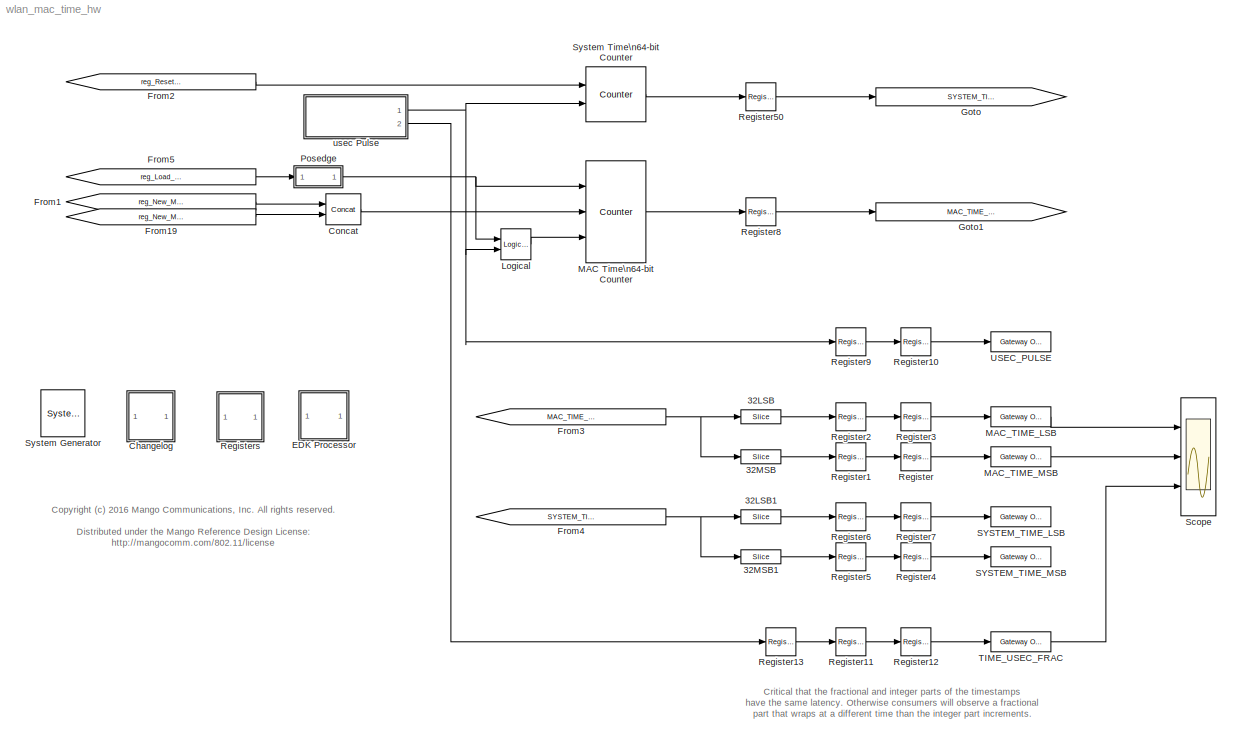
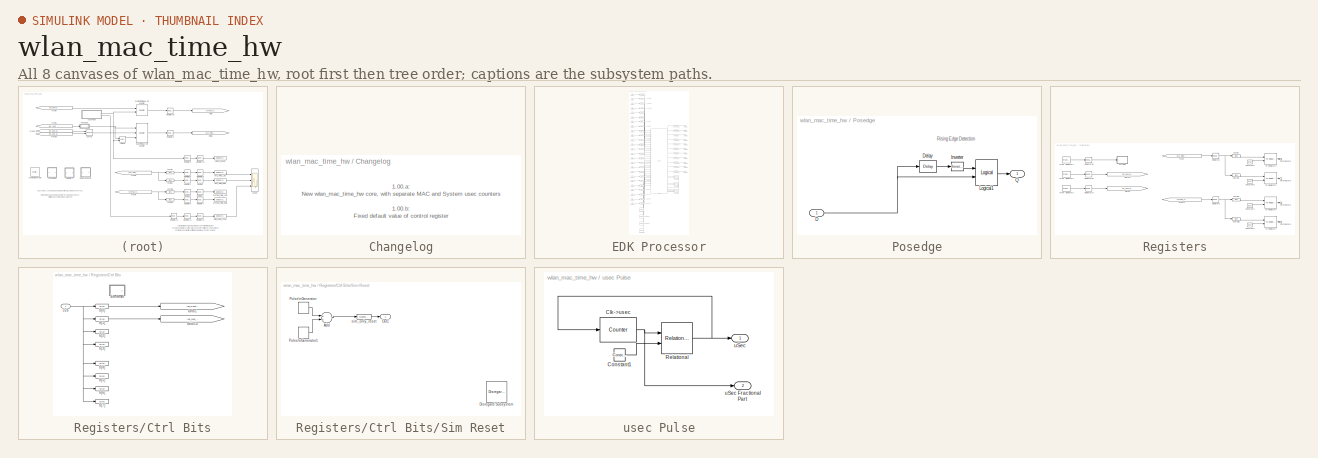
[diagram: thumbnail index - all 8 canvases of the model, root first then tree order]
MODEL wlan_mac_time_hw
KIND model
BLOCK [Reference]  System Generator  REF=xbsIndex_r4/ System Generator
  AttributesFormatString = System\\nGenerator
  Impl_file = ISE Defaults
  Ports = []
  SID = 1
  SourceBlock = xbsIndex_r4/ System Generator
  SourceType = Xilinx System Generator Block
  Synth_file = XST Defaults
  Tag = genX
  UserData = DataTag0
  UserDataPersistent = on
  block_type = sysgen
  clock_wrapper = Clock Enables
  core_generation = According to Block Masks
  dbl_ovrd = According to Block Masks
  dcm_input_clock_period = 10
  deprecated_control = off
  directory = ./wlan_mac_time_v1
  eval_field = 0
  has_advanced_control = 0
  incr_netlist = off
  infoedit = System Generator
  package = ff1156
  part = xc6vlx240t
  proj_type = Project Navigator
  run_coregen = off
  sg_icon_stat = 44,47,0,0,token,white,0,58c5b5770fe5f7c311f53dbc6e73f0f6,right,,[ ],[ ]
  sg_mask_display = fprintf('','COMMENT: begin icon graphics');\npatch([0 44 44 0 0 ],[0 0 47 47 0 ],[1 1 1 ]);\npatch([1.975 14.98 23.98 32.98 41.98 23.98 10.975 1.975 ],[32.99 32.99 41.99 32.99 41.99 41.99 41.99 32.99 ],[0.933333 0.203922 0.141176 ]);\npatch([10.975 23.98 14.98 1.975 10.975 ],[23.99 23.99 32.99 32.99 23.99 ],[0.698039 0.0313725 0.219608 ]);\npatch([1.975 14.98 23.98 10.975 1.975 ],[14.99 14.99 23.9...<+298ch>
  sggui_pos = 326,241,464,470
  simulink_period = 1
  speed = -2
  synthesis_tool = XST
  sysclk_period = 10
  testbench = off
  trim_vbits = Everywhere in SubSystem
  xilinxfamily = virtex6
BLOCK [Reference] 32LSB  REF=xbsIndex_r4/Slice
  Ports = [1, 1]
  SID = 3
  SourceBlock = xbsIndex_r4/Slice
  SourceType = Xilinx Bit Slice Extractor Block
  base0 = LSB of Input
  base1 = MSB of Input
  bit0 = 0
  bit1 = 0
  block_type = slice
  block_version = VER_STRING_GOES_HERE
  boolean_output = off
  dbl_ovrd = off
  has_advanced_control = 0
  infoedit = Extracts a given range of bits from each input sample and presents it at the output.  The output type is ordinarily unsigned with binary point at zero, but can be Boolean when the slice is one bit wide.<br><br>Hardware notes: In hardware this block costs nothing.  <repeated x16 — deduplicated; at blocks: 32LSB, 32LSB1, 32MSB, 32MSB1, b[0], b[1], b[2], b[3], b[4], b[5], b[6], b[7]>
  mode = Lower Bit Location + Width
  nbits = 32
  sg_icon_stat = 40,14,1,1,white,blue,0,1fd851a7,right,,[ ],[ ]
  sg_mask_display = fprintf('','COMMENT: begin icon graphics');\npatch([0 40 40 0 0 ],[0 0 14 14 0 ],[0.77 0.82 0.91 ]);\nplot([0 40 40 0 0 ],[0 0 14 14 0 ]);\npatch([15.55 18.44 20.44 22.44 24.44 20.44 17.55 15.55 ],[9.22 9.22 11.22 9.22 11.22 11.22 11.22 9.22 ],[1 1 1 ]);\npatch([17.55 20.44 18.44 15.55 17.55 ],[7.22 7.22 9.22 9.22 7.22 ],[0.931 0.946 0.973 ]);\npatch([15.55 18.44 20.44 17.55 15.55 ],[5.22 5.22 7.2...<+310ch>  <repeated x16 — deduplicated; at blocks: 32LSB, 32LSB1, 32MSB, 32MSB1, b[0], b[1], b[2], b[3], b[4], b[5], b[6], b[7]>
  sggui_pos = 20,20,449,398
BLOCK [Reference] 32LSB1  REF=xbsIndex_r4/Slice
  Ports = [1, 1]
  SID = 131
  SourceBlock = xbsIndex_r4/Slice
  SourceType = Xilinx Bit Slice Extractor Block
  base0 = LSB of Input
  base1 = MSB of Input
  bit0 = 0
  bit1 = 0
  block_type = slice
  block_version = VER_STRING_GOES_HERE
  boolean_output = off
  dbl_ovrd = off
  has_advanced_control = 0
  mode = Lower Bit Location + Width
  nbits = 32
  sg_icon_stat = 40,14,1,1,white,blue,0,1fd851a7,right,,[ ],[ ]
  sggui_pos = 20,20,449,398
BLOCK [Reference] 32MSB  REF=xbsIndex_r4/Slice
  Ports = [1, 1]
  SID = 4
  SourceBlock = xbsIndex_r4/Slice
  SourceType = Xilinx Bit Slice Extractor Block
  base0 = LSB of Input
  base1 = MSB of Input
  bit0 = 0
  bit1 = 0
  block_type = slice
  block_version = VER_STRING_GOES_HERE
  boolean_output = off
  dbl_ovrd = off
  has_advanced_control = 0
  mode = Upper Bit Location + Width
  nbits = 32
  sg_icon_stat = 40,14,1,1,white,blue,0,1fd851a7,right,,[ ],[ ]
  sggui_pos = 20,20,449,398
BLOCK [Reference] 32MSB1  REF=xbsIndex_r4/Slice
  Ports = [1, 1]
  SID = 132
  SourceBlock = xbsIndex_r4/Slice
  SourceType = Xilinx Bit Slice Extractor Block
  base0 = LSB of Input
  base1 = MSB of Input
  bit0 = 0
  bit1 = 0
  block_type = slice
  block_version = VER_STRING_GOES_HERE
  boolean_output = off
  dbl_ovrd = off
  has_advanced_control = 0
  mode = Upper Bit Location + Width
  nbits = 32
  sg_icon_stat = 40,14,1,1,white,blue,0,1fd851a7,right,,[ ],[ ]
  sggui_pos = 20,20,449,398
BLOCK [SubSystem] Changelog
  FunctionWithSeparateData = off
  MaskHideContents = off
  MinAlgLoopOccurrences = off
  Opaque = off
  Ports = []
  PropExecContextOutsideSubsystem = off
  RTWSystemCode = Auto
  RequestExecContextInheritance = off
  SID = 31
BLOCK [Reference] Concat  REF=xbsIndex_r4/Concat
  Ports = [2, 1]
  SID = 104
  SourceBlock = xbsIndex_r4/Concat
  SourceType = Xilinx Bus Concatenator Block
  block_type = concat
  dbl_ovrd = off
  has_advanced_control = 0
  infoedit = Concatenates two or more inputs.  Output will be cast to an unsigned value with the binary point at zero.
  num_inputs = 2
  sg_icon_stat = 35,31,2,1,white,blue,0,16398980,right,,[ ],[ ]
  sg_mask_display = fprintf('','COMMENT: begin icon graphics');\npatch([0 35 35 0 0 ],[0 0 31 31 0 ],[0.77 0.82 0.91 ]);\nplot([0 35 35 0 0 ],[0 0 31 31 0 ]);\npatch([8.1 13.88 17.88 21.88 25.88 17.88 12.1 8.1 ],[19.44 19.44 23.44 19.44 23.44 23.44 23.44 19.44 ],[1 1 1 ]);\npatch([12.1 17.88 13.88 8.1 12.1 ],[15.44 15.44 19.44 19.44 15.44 ],[0.931 0.946 0.973 ]);\npatch([8.1 13.88 17.88 12.1 8.1 ],[11.44 11.44 15.44 ...<+407ch>
  sggui_pos = -1,-1,-1,-1
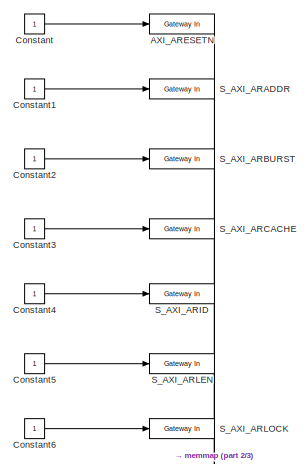
[diagram: EDK Processor - part 1/3, top left region]
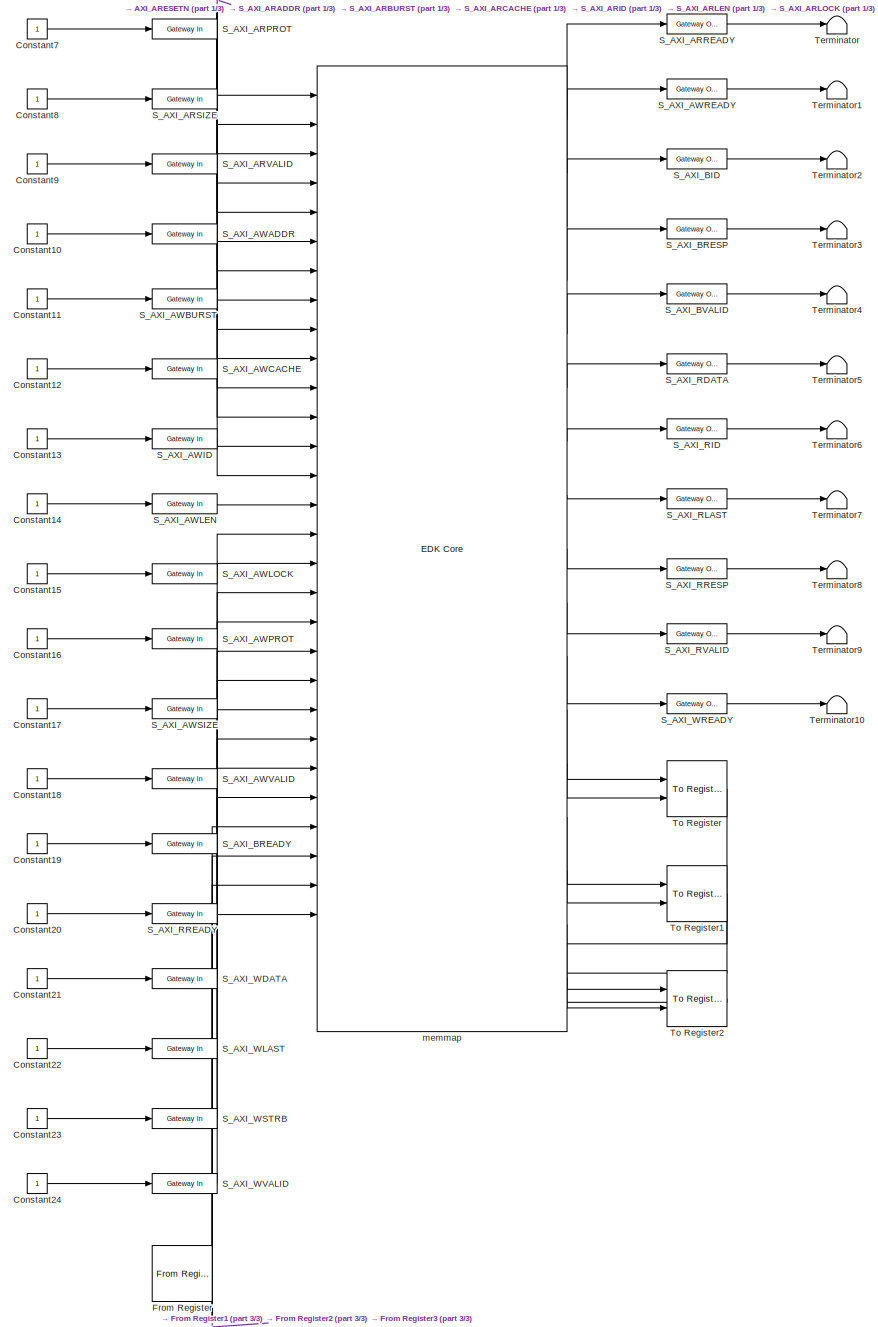
[diagram: EDK Processor - part 2/3, full width, middle band]
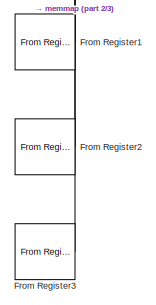
[diagram: EDK Processor - part 3/3, bottom left region]
BLOCK [SubSystem] EDK Processor
  CloseFcn = xlDestroyGui(gcbh);
  CopyFcn = xlProcBlockCopyCallback(gcbh);xlBlockMoveCallback(gcbh);
  DeleteFcn = xlDestroyGui(gcbh);
  DestroyFcn = xlDestroyGui(gcbh);
  FunctionWithSeparateData = off
  LoadFcn = xlBlockLoadCallback(gcbh);
  MaskCallbackString = |||||||||||||||||||||||||||||||||||
  MaskDescription = Xilinx EDK Processor
  MaskDisplay = fprintf('','COMMENT: begin icon graphics');\npatch([0 46 46 0 0 ],[0 0 46 46 0 ],[0.77 0.82 0.91 ]);\nplot([0 46 46 0 0 ],[0 0 46 46 0 ]);\npatch([9.65 18.32 24.32 30.32 36.32 24.32 15.65 9.65 ],[29.66 29.66 35.66 29.66 35.66 35.66 35.66 29.66 ],[1 1 1 ]);\npatch([15.65 24.32 18.32 9.65 15.65 ],[23.66 23.66 29.66 29.66 23.66 ],[0.931 0.946 0.973 ]);\npatch([9.65 18.32 24.32 15.65 9.65 ],[17.66 17....<+288ch>
  MaskEnableString = on,on,on,on,on,on,on,on,on,on,on,on,on,on,on,on,on,on,on,on,on,on,on,on,on,on,on,on,on,on,on,on,on,on,on,on
  MaskHelp = eval('');xlDoc('-book','sysgen','-topic','EDK_Processor');
  MaskHideContents = off
  MaskIconFrame = off
  MaskIconOpaque = on
  MaskIconRotate = none
  MaskIconUnits = autoscale
  MaskInitialization = try\n  tmp_gcb = gcb;\n  tmp_gcbh = gcbh;\n  if (strcmp('SysGenIndex',get_param(bdroot(tmp_gcbh),'tag')) && ~isempty(regexp(bdroot(tmp_gcb), '^xbs', 'once')))\n    return;\n  end;\n  xlMungeMaskParams;\n\n  block_type='edkprocessor';\n\n  serialized_declarations = '{''block_type''=>''String''}';\n  xledkprocessor_init();\n  ptable_ = xlblockprep(get_param(tmp_gcb, 'MaskWSVariables'));\n  try\n    ...<+321ch>
  MaskPortRotate = default
  MaskPromptString = Configure Processor for|XPS Project| |Available Memories| | |Bus Type|Base Address| |Lock| |Dual Clocks| |Register Read-Back|Constraint File| |Inherit Device Type|Initial Program| |Enable Co-Debug with Xilinx SDK (Beta)| | | | | | | | | | | | | | | |
  MaskSelfModifiable = on
  MaskStyleString = popup(EDK pcore generation|HDL netlisting),edit,edit,edit,edit,edit,popup(AXI|PLB),edit,edit,checkbox,edit,checkbox,edit,checkbox,edit,edit,checkbox,edit,edit,checkbox,edit,edit,edit,edit,edit,edit,edit,edit,edit,edit,edit,edit,edit,edit,edit,edit
  MaskToolTipString = on,on,on,on,on,on,on,on,on,on,on,on,on,on,on,on,on,on,on,on,on,on,on,on,on,on,on,on,on,on,on,on,on,on,on,on
  MaskTunableValueString = on,on,on,on,on,on,on,on,on,on,on,on,on,on,on,on,on,on,on,on,on,on,on,on,on,on,on,on,on,on,on,on,on,on,on,on
  MaskType = Xilinx EDK Processor Block
  MaskValueString = EDK pcore generation||<qt bgcolor=\"#FFFFFF\"><div><img src=\"<path>"> &lt;&lt;NEW_MAC_TIME_MSB&gt;&gt;<br></div><div><img src=\"<path>"> &lt;&lt;NEW_MAC_TIME_LSB&gt;&gt;<br></div><div><img src=\"<path>"> &lt;&lt;Control&gt;&gt;<br>...<+2286ch>
  MaskVariables = mode=&1;xmp=&2;MemVisToProc=&3;AvailableMemories=&4;portInterfaceTable=&5;bus_type_sgadvanced=&6;bus_type=&7;baseaddr=&8;baseaddr_lock_sgadvanced=&9;baseaddr_lock=@10;dual_clock_sgadvanced=&11;dual_clock=@12;reg_readback_sgadvanced=&13;reg_readback=@14;ucf_file=&15;inheritDeviceType_sgadvanced=&16;inheritDeviceType=@17;elf_file=&18;codebug_sgadvanced=&19;codebug=@20;clock_name=&21;internalPortList...<+246ch>
  MaskVisibilityString = on,on,off,on,on,off,on,on,off,on,off,on,off,on,on,off,on,on,off,on,off,off,off,off,off,off,off,off,off,off,off,off,off,off,off,off
  MinAlgLoopOccurrences = off
  ModelCloseFcn = xlDestroyGui(gcbh);
  MoveFcn = xlBlockMoveCallback(gcbh);
  Opaque = off
  OpenFcn = bh=gcbh;xlProcBlockCallbacks('populatesharedmemorylistbox',bh);xlOpenGui(bh, 'edkprocessor_gui.xml', @xlProcBlockEnablement, @xlProcBlockAction);
  Ports = []
  PostSaveFcn = xlBlockPostSaveCallback(gcbh);
  PreSaveFcn = xlBlockPreSaveCallback(gcbh);
  PropExecContextOutsideSubsystem = off
  RTWSystemCode = Auto
  RequestExecContextInheritance = off
  SID = 215
BLOCK [Reference] EDK Processor/AXI_ARESETN  REF=xbsIndex_r4/Gateway In
  ADCChannel = '1'
  LOCs = {}
  Ports = [1, 1]
  SID = 215:211
  SourceBlock = xbsIndex_r4/Gateway In
  SourceType = Xilinx Gateway In Block
  UseAsADC = off
  arith_type = Boolean
  bin_pt = 14
  block_type = gatewayin
  dbl_ovrd = off
  exp_width = 8
  frac_width = 24
  gui_display_data_type = Fixed-point
  has_advanced_control = 0
  hdl_port = on
  infoedit = Gateway in block.  Converts inputs of type Simulink integer, single, double and fixed-point to  Xilinx fixed-point or floating-point data type.<br><br>Hardware notes:  In hardware these blocks become top level input ports.  <repeated x26 — deduplicated; at blocks: AXI_ARESETN, S_AXI_ARADDR, S_AXI_ARBURST, S_AXI_ARCACHE, S_AXI_ARID, S_AXI_ARLEN, S_AXI_ARLOCK, S_AXI_ARPROT, S_AXI_ARSIZE, S_AXI_ARVALID, S_AXI_AWADDR, S_AXI_AWBURST, S_AXI_AWCACHE, S_AXI_AWID, S_AXI_AWLEN, S_AXI_AWLOCK, +10 more>
  inherit_from_input = off
  locs_specified = off
  n_bits = 16
  overflow = Saturate
  period = xlGetNormalizedPeriod()
  preci_type = Single
  quantization = Round  (unbiased: +/- Inf)
  sg_icon_stat = 65,20,1,1,white,yellow,1,00d3666e,right,,[ ],[ ]
  sg_mask_display = fprintf('','COMMENT: begin icon graphics');\npatch([0 65 65 0 0 ],[0 0 20 20 0 ],[0.95 0.93 0.65 ]);\nplot([0 65 65 0 0 ],[0 0 20 20 0 ]);\npatch([27.55 30.44 32.44 34.44 36.44 32.44 29.55 27.55 ],[12.22 12.22 14.22 12.22 14.22 14.22 14.22 12.22 ],[1 1 1 ]);\npatch([29.55 32.44 30.44 27.55 29.55 ],[10.22 10.22 12.22 12.22 10.22 ],[0.985 0.979 0.895 ]);\npatch([27.55 30.44 32.44 29.55 27.55 ],[8.22...<+396ch>  <repeated x25 — deduplicated; at blocks: AXI_ARESETN, S_AXI_ARADDR, S_AXI_ARBURST, S_AXI_ARCACHE, S_AXI_ARID, S_AXI_ARLEN, S_AXI_ARLOCK, S_AXI_ARPROT, S_AXI_ARSIZE, S_AXI_ARVALID, S_AXI_AWADDR, S_AXI_AWBURST, S_AXI_AWCACHE, S_AXI_AWID, S_AXI_AWLEN, S_AXI_AWLOCK, +9 more>
  sggui_pos = -1,-1,-1,-1
  timing_constraint = None
  xl_area = [0,0,0,0,0,0,0]
  xl_use_area = off
BLOCK [Constant] EDK Processor/Constant
  MaskIconFrame = on
  MaskIconOpaque = on
  MaskIconRotate = none
  MaskIconUnits = autoscale
  MaskPortRotate = default
  SID = 215:210
BLOCK [Constant] EDK Processor/Constant1
  MaskIconFrame = on
  MaskIconOpaque = on
  MaskIconRotate = none
  MaskIconUnits = autoscale
  MaskPortRotate = default
  SID = 215:212
BLOCK [Constant] EDK Processor/Constant10
  MaskIconFrame = on
  MaskIconOpaque = on
  MaskIconRotate = none
  MaskIconUnits = autoscale
  MaskPortRotate = default
  SID = 215:230
BLOCK [Constant] EDK Processor/Constant11
  MaskIconFrame = on
  MaskIconOpaque = on
  MaskIconRotate = none
  MaskIconUnits = autoscale
  MaskPortRotate = default
  SID = 215:232
BLOCK [Constant] EDK Processor/Constant12
  MaskIconFrame = on
  MaskIconOpaque = on
  MaskIconRotate = none
  MaskIconUnits = autoscale
  MaskPortRotate = default
  SID = 215:234
BLOCK [Constant] EDK Processor/Constant13
  MaskIconFrame = on
  MaskIconOpaque = on
  MaskIconRotate = none
  MaskIconUnits = autoscale
  MaskPortRotate = default
  SID = 215:236
BLOCK [Constant] EDK Processor/Constant14
  MaskIconFrame = on
  MaskIconOpaque = on
  MaskIconRotate = none
  MaskIconUnits = autoscale
  MaskPortRotate = default
  SID = 215:238
BLOCK [Constant] EDK Processor/Constant15
  MaskIconFrame = on
  MaskIconOpaque = on
  MaskIconRotate = none
  MaskIconUnits = autoscale
  MaskPortRotate = default
  SID = 215:240
BLOCK [Constant] EDK Processor/Constant16
  MaskIconFrame = on
  MaskIconOpaque = on
  MaskIconRotate = none
  MaskIconUnits = autoscale
  MaskPortRotate = default
  SID = 215:242
BLOCK [Constant] EDK Processor/Constant17
  MaskIconFrame = on
  MaskIconOpaque = on
  MaskIconRotate = none
  MaskIconUnits = autoscale
  MaskPortRotate = default
  SID = 215:244
BLOCK [Constant] EDK Processor/Constant18
  MaskIconFrame = on
  MaskIconOpaque = on
  MaskIconRotate = none
  MaskIconUnits = autoscale
  MaskPortRotate = default
  SID = 215:246
BLOCK [Constant] EDK Processor/Constant19
  MaskIconFrame = on
  MaskIconOpaque = on
  MaskIconRotate = none
  MaskIconUnits = autoscale
  MaskPortRotate = default
  SID = 215:248
BLOCK [Constant] EDK Processor/Constant2
  MaskIconFrame = on
  MaskIconOpaque = on
  MaskIconRotate = none
  MaskIconUnits = autoscale
  MaskPortRotate = default
  SID = 215:214
BLOCK [Constant] EDK Processor/Constant20
  MaskIconFrame = on
  MaskIconOpaque = on
  MaskIconRotate = none
  MaskIconUnits = autoscale
  MaskPortRotate = default
  SID = 215:250
BLOCK [Constant] EDK Processor/Constant21
  MaskIconFrame = on
  MaskIconOpaque = on
  MaskIconRotate = none
  MaskIconUnits = autoscale
  MaskPortRotate = default
  SID = 215:252
BLOCK [Constant] EDK Processor/Constant22
  MaskIconFrame = on
  MaskIconOpaque = on
  MaskIconRotate = none
  MaskIconUnits = autoscale
  MaskPortRotate = default
  SID = 215:254
BLOCK [Constant] EDK Processor/Constant23
  MaskIconFrame = on
  MaskIconOpaque = on
  MaskIconRotate = none
  MaskIconUnits = autoscale
  MaskPortRotate = default
  SID = 215:256
BLOCK [Constant] EDK Processor/Constant24
  MaskIconFrame = on
  MaskIconOpaque = on
  MaskIconRotate = none
  MaskIconUnits = autoscale
  MaskPortRotate = default
  SID = 215:258
BLOCK [Constant] EDK Processor/Constant3
  MaskIconFrame = on
  MaskIconOpaque = on
  MaskIconRotate = none
  MaskIconUnits = autoscale
  MaskPortRotate = default
  SID = 215:216
BLOCK [Constant] EDK Processor/Constant4
  MaskIconFrame = on
  MaskIconOpaque = on
  MaskIconRotate = none
  MaskIconUnits = autoscale
  MaskPortRotate = default
  SID = 215:218
BLOCK [Constant] EDK Processor/Constant5
  MaskIconFrame = on
  MaskIconOpaque = on
  MaskIconRotate = none
  MaskIconUnits = autoscale
  MaskPortRotate = default
  SID = 215:220
BLOCK [Constant] EDK Processor/Constant6
  MaskIconFrame = on
  MaskIconOpaque = on
  MaskIconRotate = none
  MaskIconUnits = autoscale
  MaskPortRotate = default
  SID = 215:222
BLOCK [Constant] EDK Processor/Constant7
  MaskIconFrame = on
  MaskIconOpaque = on
  MaskIconRotate = none
  MaskIconUnits = autoscale
  MaskPortRotate = default
  SID = 215:224
BLOCK [Constant] EDK Processor/Constant8
  MaskIconFrame = on
  MaskIconOpaque = on
  MaskIconRotate = none
  MaskIconUnits = autoscale
  MaskPortRotate = default
  SID = 215:226
BLOCK [Constant] EDK Processor/Constant9
  MaskIconFrame = on
  MaskIconOpaque = on
  MaskIconRotate = none
  MaskIconUnits = autoscale
  MaskPortRotate = default
  SID = 215:228
BLOCK [Reference] EDK Processor/From Register  REF=xbsIndex_r4/From Register
  AttributesFormatString = << %<shared_memory_name> >>
  Ports = [0, 1]
  SID = 215:203
  SourceBlock = xbsIndex_r4/From Register
  SourceType = Xilinx Shared Memory Based From Register Block
  arith_type = Unsigned
  bin_pt = 0
  block_type = fromreg
  dbl_ovrd = off
  gui_display_data_type = Fixed-point
  has_advanced_control = 0
  infoedit = Register block that reads data to a shared memory register.  Delay of one sample period.
  init = 0
  n_bits = 32
  ownership = Owned and initialized elsewhere
  period = xlGetNormalizedPeriod()
  preci_type = Single
  sg_icon_stat = 60,56,0,1,white,blue,0,b27a07ff,right,,[ ],[ ]
  sg_mask_display = fprintf('','COMMENT: begin icon graphics');\npatch([0 60 60 0 0 ],[0 0 56 56 0 ],[0.77 0.82 0.91 ]);\nplot([0 60 60 0 0 ],[0 0 56 56 0 ]);\npatch([12.2 23.76 31.76 39.76 47.76 31.76 20.2 12.2 ],[36.88 36.88 44.88 36.88 44.88 44.88 44.88 36.88 ],[1 1 1 ]);\npatch([20.2 31.76 23.76 12.2 20.2 ],[28.88 28.88 36.88 36.88 28.88 ],[0.931 0.946 0.973 ]);\npatch([12.2 23.76 31.76 20.2 12.2 ],[20.88 20.88 2...<+316ch>  <repeated x4 — deduplicated; at blocks: From Register, From Register1, From Register2, From Register3>
  sggui_pos = -1,-1,-1,-1
  shared_memory_name = 'SYSTEM_TIME_USEC_MSB'
  xl_area = [0,0,0,0,0,0,0]
  xl_use_area = off
BLOCK [Reference] EDK Processor/From Register1  REF=xbsIndex_r4/From Register
  AttributesFormatString = << %<shared_memory_name> >>
  Ports = [0, 1]
  SID = 215:204
  SourceBlock = xbsIndex_r4/From Register
  SourceType = Xilinx Shared Memory Based From Register Block
  arith_type = Unsigned
  bin_pt = 0
  block_type = fromreg
  dbl_ovrd = off
  gui_display_data_type = Fixed-point
  has_advanced_control = 0
  infoedit = Register block that reads data to a shared memory register.  Delay of one sample period.
  init = 0
  n_bits = 32
  ownership = Owned and initialized elsewhere
  period = xlGetNormalizedPeriod()
  preci_type = Single
  sg_icon_stat = 60,56,0,1,white,blue,0,b27a07ff,right,,[ ],[ ]
  sggui_pos = -1,-1,-1,-1
  shared_memory_name = 'SYSTEM_TIME_USEC_LSB'
  xl_area = [0,0,0,0,0,0,0]
  xl_use_area = off
BLOCK [Reference] EDK Processor/From Register2  REF=xbsIndex_r4/From Register
  AttributesFormatString = << %<shared_memory_name> >>
  Ports = [0, 1]
  SID = 215:205
  SourceBlock = xbsIndex_r4/From Register
  SourceType = Xilinx Shared Memory Based From Register Block
  arith_type = Unsigned
  bin_pt = 0
  block_type = fromreg
  dbl_ovrd = off
  gui_display_data_type = Fixed-point
  has_advanced_control = 0
  infoedit = Register block that reads data to a shared memory register.  Delay of one sample period.
  init = 0
  n_bits = 32
  ownership = Owned and initialized elsewhere
  period = xlGetNormalizedPeriod()
  preci_type = Single
  sg_icon_stat = 60,56,0,1,white,blue,0,b27a07ff,right,,[ ],[ ]
  sggui_pos = -1,-1,-1,-1
  shared_memory_name = 'MAC_TIME_USEC_MSB'
  xl_area = [0,0,0,0,0,0,0]
  xl_use_area = off
BLOCK [Reference] EDK Processor/From Register3  REF=xbsIndex_r4/From Register
  AttributesFormatString = << %<shared_memory_name> >>
  Ports = [0, 1]
  SID = 215:206
  SourceBlock = xbsIndex_r4/From Register
  SourceType = Xilinx Shared Memory Based From Register Block
  arith_type = Unsigned
  bin_pt = 0
  block_type = fromreg
  dbl_ovrd = off
  gui_display_data_type = Fixed-point
  has_advanced_control = 0
  infoedit = Register block that reads data to a shared memory register.  Delay of one sample period.
  init = 0
  n_bits = 32
  ownership = Owned and initialized elsewhere
  period = xlGetNormalizedPeriod()
  preci_type = Single
  sg_icon_stat = 60,56,0,1,white,blue,0,b27a07ff,right,,[ ],[ ]
  sggui_pos = -1,-1,-1,-1
  shared_memory_name = 'MAC_TIME_USEC_LSB'
  xl_area = [0,0,0,0,0,0,0]
  xl_use_area = off
BLOCK [Reference] EDK Processor/S_AXI_ARADDR  REF=xbsIndex_r4/Gateway In
  ADCChannel = '1'
  LOCs = {}
  Ports = [1, 1]
  SID = 215:213
  SourceBlock = xbsIndex_r4/Gateway In
  SourceType = Xilinx Gateway In Block
  UseAsADC = off
  arith_type = Unsigned
  bin_pt = 0
  block_type = gatewayin
  dbl_ovrd = off
  exp_width = 8
  frac_width = 24
  gui_display_data_type = Fixed-point
  has_advanced_control = 0
  hdl_port = on
  inherit_from_input = off
  locs_specified = off
  n_bits = 32
  overflow = Saturate
  period = xlGetNormalizedPeriod()
  preci_type = Single
  quantization = Round  (unbiased: +/- Inf)
  sg_icon_stat = 65,20,1,1,white,yellow,1,00d3666e,right,,[ ],[ ]
  sggui_pos = -1,-1,-1,-1
  timing_constraint = None
  xl_area = [0,0,0,0,0,0,0]
  xl_use_area = off
BLOCK [Reference] EDK Processor/S_AXI_ARBURST  REF=xbsIndex_r4/Gateway In
  ADCChannel = '1'
  LOCs = {}
  Ports = [1, 1]
  SID = 215:215
  SourceBlock = xbsIndex_r4/Gateway In
  SourceType = Xilinx Gateway In Block
  UseAsADC = off
  arith_type = Unsigned
  bin_pt = 0
  block_type = gatewayin
  dbl_ovrd = off
  exp_width = 8
  frac_width = 24
  gui_display_data_type = Fixed-point
  has_advanced_control = 0
  hdl_port = on
  inherit_from_input = off
  locs_specified = off
  n_bits = 2
  overflow = Saturate
  period = xlGetNormalizedPeriod()
  preci_type = Single
  quantization = Round  (unbiased: +/- Inf)
  sg_icon_stat = 65,20,1,1,white,yellow,1,00d3666e,right,,[ ],[ ]
  sggui_pos = -1,-1,-1,-1
  timing_constraint = None
  xl_area = [0,0,0,0,0,0,0]
  xl_use_area = off
BLOCK [Reference] EDK Processor/S_AXI_ARCACHE  REF=xbsIndex_r4/Gateway In
  ADCChannel = '1'
  LOCs = {}
  Ports = [1, 1]
  SID = 215:217
  SourceBlock = xbsIndex_r4/Gateway In
  SourceType = Xilinx Gateway In Block
  UseAsADC = off
  arith_type = Unsigned
  bin_pt = 0
  block_type = gatewayin
  dbl_ovrd = off
  exp_width = 8
  frac_width = 24
  gui_display_data_type = Fixed-point
  has_advanced_control = 0
  hdl_port = on
  inherit_from_input = off
  locs_specified = off
  n_bits = 4
  overflow = Saturate
  period = xlGetNormalizedPeriod()
  preci_type = Single
  quantization = Round  (unbiased: +/- Inf)
  sg_icon_stat = 65,20,1,1,white,yellow,1,00d3666e,right,,[ ],[ ]
  sggui_pos = -1,-1,-1,-1
  timing_constraint = None
  xl_area = [0,0,0,0,0,0,0]
  xl_use_area = off
BLOCK [Reference] EDK Processor/S_AXI_ARID  REF=xbsIndex_r4/Gateway In
  ADCChannel = '1'
  LOCs = {}
  Ports = [1, 1]
  SID = 215:219
  SourceBlock = xbsIndex_r4/Gateway In
  SourceType = Xilinx Gateway In Block
  UseAsADC = off
  arith_type = Unsigned
  bin_pt = 0
  block_type = gatewayin
  dbl_ovrd = off
  exp_width = 8
  frac_width = 24
  gui_display_data_type = Fixed-point
  has_advanced_control = 0
  hdl_port = on
  inherit_from_input = off
  locs_specified = off
  n_bits = 8
  overflow = Saturate
  period = xlGetNormalizedPeriod()
  preci_type = Single
  quantization = Round  (unbiased: +/- Inf)
  sg_icon_stat = 65,20,1,1,white,yellow,1,00d3666e,right,,[ ],[ ]
  sggui_pos = -1,-1,-1,-1
  timing_constraint = None
  xl_area = [0,0,0,0,0,0,0]
  xl_use_area = off
BLOCK [Reference] EDK Processor/S_AXI_ARLEN  REF=xbsIndex_r4/Gateway In
  ADCChannel = '1'
  LOCs = {}
  Ports = [1, 1]
  SID = 215:221
  SourceBlock = xbsIndex_r4/Gateway In
  SourceType = Xilinx Gateway In Block
  UseAsADC = off
  arith_type = Unsigned
  bin_pt = 0
  block_type = gatewayin
  dbl_ovrd = off
  exp_width = 8
  frac_width = 24
  gui_display_data_type = Fixed-point
  has_advanced_control = 0
  hdl_port = on
  inherit_from_input = off
  locs_specified = off
  n_bits = 8
  overflow = Saturate
  period = xlGetNormalizedPeriod()
  preci_type = Single
  quantization = Round  (unbiased: +/- Inf)
  sg_icon_stat = 65,20,1,1,white,yellow,1,00d3666e,right,,[ ],[ ]
  sggui_pos = -1,-1,-1,-1
  timing_constraint = None
  xl_area = [0,0,0,0,0,0,0]
  xl_use_area = off
BLOCK [Reference] EDK Processor/S_AXI_ARLOCK  REF=xbsIndex_r4/Gateway In
  ADCChannel = '1'
  LOCs = {}
  Ports = [1, 1]
  SID = 215:223
  SourceBlock = xbsIndex_r4/Gateway In
  SourceType = Xilinx Gateway In Block
  UseAsADC = off
  arith_type = Unsigned
  bin_pt = 0
  block_type = gatewayin
  dbl_ovrd = off
  exp_width = 8
  frac_width = 24
  gui_display_data_type = Fixed-point
  has_advanced_control = 0
  hdl_port = on
  inherit_from_input = off
  locs_specified = off
  n_bits = 2
  overflow = Saturate
  period = xlGetNormalizedPeriod()
  preci_type = Single
  quantization = Round  (unbiased: +/- Inf)
  sg_icon_stat = 65,20,1,1,white,yellow,1,00d3666e,right,,[ ],[ ]
  sggui_pos = -1,-1,-1,-1
  timing_constraint = None
  xl_area = [0,0,0,0,0,0,0]
  xl_use_area = off
BLOCK [Reference] EDK Processor/S_AXI_ARPROT  REF=xbsIndex_r4/Gateway In
  ADCChannel = '1'
  LOCs = {}
  Ports = [1, 1]
  SID = 215:225
  SourceBlock = xbsIndex_r4/Gateway In
  SourceType = Xilinx Gateway In Block
  UseAsADC = off
  arith_type = Unsigned
  bin_pt = 0
  block_type = gatewayin
  dbl_ovrd = off
  exp_width = 8
  frac_width = 24
  gui_display_data_type = Fixed-point
  has_advanced_control = 0
  hdl_port = on
  inherit_from_input = off
  locs_specified = off
  n_bits = 3
  overflow = Saturate
  period = xlGetNormalizedPeriod()
  preci_type = Single
  quantization = Round  (unbiased: +/- Inf)
  sg_icon_stat = 65,20,1,1,white,yellow,1,00d3666e,right,,[ ],[ ]
  sggui_pos = -1,-1,-1,-1
  timing_constraint = None
  xl_area = [0,0,0,0,0,0,0]
  xl_use_area = off
BLOCK [Reference] EDK Processor/S_AXI_ARREADY  REF=xbsIndex_r4/Gateway Out
  DACChannel = '1'
  LOCs = {}
  Ports = [1, 1]
  SID = 215:261
  SourceBlock = xbsIndex_r4/Gateway Out
  SourceType = Xilinx Gateway Out Block
  UseAsDAC = off
  block_type = gatewayout
  has_advanced_control = 0
  hdl_port = on
  infoedit = Gateway out block.  Converts Xilinx fixed-point or floating-point type inputs into ouputs of type Simulink integer, single, double, or fixed-point.<br><br>Hardware notes:  In hardware these blocks become top level output ports or are discarded, depending on how they are configured.  <repeated x17 — deduplicated; at blocks: S_AXI_ARREADY, S_AXI_AWREADY, S_AXI_BID, S_AXI_BRESP, S_AXI_BVALID, S_AXI_RDATA, S_AXI_RID, S_AXI_RLAST, S_AXI_RRESP, S_AXI_RVALID, S_AXI_WREADY, MAC_TIME_LSB, MAC_TIME_MSB, SYSTEM_TIME_LSB, SYSTEM_TIME_MSB, TIME_USEC_FRAC, +1 more>
  inherit_from_input = off
  locs_specified = off
  sg_icon_stat = 60,20,1,1,white,yellow,1,cc31b7ac,right,,[ ],[ ]
  sg_mask_display = fprintf('','COMMENT: begin icon graphics');\npatch([0 60 60 0 0 ],[0 0 20 20 0 ],[0.95 0.93 0.65 ]);\nplot([0 60 60 0 0 ],[0 0 20 20 0 ]);\npatch([25.55 28.44 30.44 32.44 34.44 30.44 27.55 25.55 ],[12.22 12.22 14.22 12.22 14.22 14.22 14.22 12.22 ],[1 1 1 ]);\npatch([27.55 30.44 28.44 25.55 27.55 ],[10.22 10.22 12.22 12.22 10.22 ],[0.985 0.979 0.895 ]);\npatch([25.55 28.44 30.44 27.55 25.55 ],[8.22...<+397ch>  <repeated x17 — deduplicated; at blocks: S_AXI_ARREADY, S_AXI_AWREADY, S_AXI_BID, S_AXI_BRESP, S_AXI_BVALID, S_AXI_RDATA, S_AXI_RID, S_AXI_RLAST, S_AXI_RRESP, S_AXI_RVALID, S_AXI_WREADY, MAC_TIME_LSB, MAC_TIME_MSB, SYSTEM_TIME_LSB, SYSTEM_TIME_MSB, TIME_USEC_FRAC, +1 more>
  sggui_pos = -1,-1,-1,-1
  timing_constraint = None
  xl_area = [0,0,0,0,0,0,0]
  xl_use_area = off
BLOCK [Reference] EDK Processor/S_AXI_ARSIZE  REF=xbsIndex_r4/Gateway In
  ADCChannel = '1'
  LOCs = {}
  Ports = [1, 1]
  SID = 215:227
  SourceBlock = xbsIndex_r4/Gateway In
  SourceType = Xilinx Gateway In Block
  UseAsADC = off
  arith_type = Unsigned
  bin_pt = 0
  block_type = gatewayin
  dbl_ovrd = off
  exp_width = 8
  frac_width = 24
  gui_display_data_type = Fixed-point
  has_advanced_control = 0
  hdl_port = on
  inherit_from_input = off
  locs_specified = off
  n_bits = 3
  overflow = Saturate
  period = xlGetNormalizedPeriod()
  preci_type = Single
  quantization = Round  (unbiased: +/- Inf)
  sg_icon_stat = 65,20,1,1,white,yellow,1,00d3666e,right,,[ ],[ ]
  sggui_pos = -1,-1,-1,-1
  timing_constraint = None
  xl_area = [0,0,0,0,0,0,0]
  xl_use_area = off
BLOCK [Reference] EDK Processor/S_AXI_ARVALID  REF=xbsIndex_r4/Gateway In
  ADCChannel = '1'
  LOCs = {}
  Ports = [1, 1]
  SID = 215:229
  SourceBlock = xbsIndex_r4/Gateway In
  SourceType = Xilinx Gateway In Block
  UseAsADC = off
  arith_type = Boolean
  bin_pt = 14
  block_type = gatewayin
  dbl_ovrd = off
  exp_width = 8
  frac_width = 24
  gui_display_data_type = Fixed-point
  has_advanced_control = 0
  hdl_port = on
  inherit_from_input = off
  locs_specified = off
  n_bits = 16
  overflow = Saturate
  period = xlGetNormalizedPeriod()
  preci_type = Single
  quantization = Round  (unbiased: +/- Inf)
  sg_icon_stat = 65,20,1,1,white,yellow,1,00d3666e,right,,[ ],[ ]
  sggui_pos = -1,-1,-1,-1
  timing_constraint = None
  xl_area = [0,0,0,0,0,0,0]
  xl_use_area = off
BLOCK [Reference] EDK Processor/S_AXI_AWADDR  REF=xbsIndex_r4/Gateway In
  ADCChannel = '1'
  LOCs = {}
  Ports = [1, 1]
  SID = 215:231
  SourceBlock = xbsIndex_r4/Gateway In
  SourceType = Xilinx Gateway In Block
  UseAsADC = off
  arith_type = Unsigned
  bin_pt = 0
  block_type = gatewayin
  dbl_ovrd = off
  exp_width = 8
  frac_width = 24
  gui_display_data_type = Fixed-point
  has_advanced_control = 0
  hdl_port = on
  inherit_from_input = off
  locs_specified = off
  n_bits = 32
  overflow = Saturate
  period = xlGetNormalizedPeriod()
  preci_type = Single
  quantization = Round  (unbiased: +/- Inf)
  sg_icon_stat = 65,20,1,1,white,yellow,1,00d3666e,right,,[ ],[ ]
  sggui_pos = -1,-1,-1,-1
  timing_constraint = None
  xl_area = [0,0,0,0,0,0,0]
  xl_use_area = off
BLOCK [Reference] EDK Processor/S_AXI_AWBURST  REF=xbsIndex_r4/Gateway In
  ADCChannel = '1'
  LOCs = {}
  Ports = [1, 1]
  SID = 215:233
  SourceBlock = xbsIndex_r4/Gateway In
  SourceType = Xilinx Gateway In Block
  UseAsADC = off
  arith_type = Unsigned
  bin_pt = 0
  block_type = gatewayin
  dbl_ovrd = off
  exp_width = 8
  frac_width = 24
  gui_display_data_type = Fixed-point
  has_advanced_control = 0
  hdl_port = on
  inherit_from_input = off
  locs_specified = off
  n_bits = 2
  overflow = Saturate
  period = xlGetNormalizedPeriod()
  preci_type = Single
  quantization = Round  (unbiased: +/- Inf)
  sg_icon_stat = 65,20,1,1,white,yellow,1,00d3666e,right,,[ ],[ ]
  sggui_pos = -1,-1,-1,-1
  timing_constraint = None
  xl_area = [0,0,0,0,0,0,0]
  xl_use_area = off
BLOCK [Reference] EDK Processor/S_AXI_AWCACHE  REF=xbsIndex_r4/Gateway In
  ADCChannel = '1'
  LOCs = {}
  Ports = [1, 1]
  SID = 215:235
  SourceBlock = xbsIndex_r4/Gateway In
  SourceType = Xilinx Gateway In Block
  UseAsADC = off
  arith_type = Unsigned
  bin_pt = 0
  block_type = gatewayin
  dbl_ovrd = off
  exp_width = 8
  frac_width = 24
  gui_display_data_type = Fixed-point
  has_advanced_control = 0
  hdl_port = on
  inherit_from_input = off
  locs_specified = off
  n_bits = 4
  overflow = Saturate
  period = xlGetNormalizedPeriod()
  preci_type = Single
  quantization = Round  (unbiased: +/- Inf)
  sg_icon_stat = 65,20,1,1,white,yellow,1,00d3666e,right,,[ ],[ ]
  sggui_pos = -1,-1,-1,-1
  timing_constraint = None
  xl_area = [0,0,0,0,0,0,0]
  xl_use_area = off
BLOCK [Reference] EDK Processor/S_AXI_AWID  REF=xbsIndex_r4/Gateway In
  ADCChannel = '1'
  LOCs = {}
  Ports = [1, 1]
  SID = 215:237
  SourceBlock = xbsIndex_r4/Gateway In
  SourceType = Xilinx Gateway In Block
  UseAsADC = off
  arith_type = Unsigned
  bin_pt = 0
  block_type = gatewayin
  dbl_ovrd = off
  exp_width = 8
  frac_width = 24
  gui_display_data_type = Fixed-point
  has_advanced_control = 0
  hdl_port = on
  inherit_from_input = off
  locs_specified = off
  n_bits = 8
  overflow = Saturate
  period = xlGetNormalizedPeriod()
  preci_type = Single
  quantization = Round  (unbiased: +/- Inf)
  sg_icon_stat = 65,20,1,1,white,yellow,1,00d3666e,right,,[ ],[ ]
  sggui_pos = -1,-1,-1,-1
  timing_constraint = None
  xl_area = [0,0,0,0,0,0,0]
  xl_use_area = off
BLOCK [Reference] EDK Processor/S_AXI_AWLEN  REF=xbsIndex_r4/Gateway In
  ADCChannel = '1'
  LOCs = {}
  Ports = [1, 1]
  SID = 215:239
  SourceBlock = xbsIndex_r4/Gateway In
  SourceType = Xilinx Gateway In Block
  UseAsADC = off
  arith_type = Unsigned
  bin_pt = 0
  block_type = gatewayin
  dbl_ovrd = off
  exp_width = 8
  frac_width = 24
  gui_display_data_type = Fixed-point
  has_advanced_control = 0
  hdl_port = on
  inherit_from_input = off
  locs_specified = off
  n_bits = 8
  overflow = Saturate
  period = xlGetNormalizedPeriod()
  preci_type = Single
  quantization = Round  (unbiased: +/- Inf)
  sg_icon_stat = 65,20,1,1,white,yellow,1,00d3666e,right,,[ ],[ ]
  sggui_pos = -1,-1,-1,-1
  timing_constraint = None
  xl_area = [0,0,0,0,0,0,0]
  xl_use_area = off
BLOCK [Reference] EDK Processor/S_AXI_AWLOCK  REF=xbsIndex_r4/Gateway In
  ADCChannel = '1'
  LOCs = {}
  Ports = [1, 1]
  SID = 215:241
  SourceBlock = xbsIndex_r4/Gateway In
  SourceType = Xilinx Gateway In Block
  UseAsADC = off
  arith_type = Unsigned
  bin_pt = 0
  block_type = gatewayin
  dbl_ovrd = off
  exp_width = 8
  frac_width = 24
  gui_display_data_type = Fixed-point
  has_advanced_control = 0
  hdl_port = on
  inherit_from_input = off
  locs_specified = off
  n_bits = 2
  overflow = Saturate
  period = xlGetNormalizedPeriod()
  preci_type = Single
  quantization = Round  (unbiased: +/- Inf)
  sg_icon_stat = 65,20,1,1,white,yellow,1,00d3666e,right,,[ ],[ ]
  sggui_pos = -1,-1,-1,-1
  timing_constraint = None
  xl_area = [0,0,0,0,0,0,0]
  xl_use_area = off
BLOCK [Reference] EDK Processor/S_AXI_AWPROT  REF=xbsIndex_r4/Gateway In
  ADCChannel = '1'
  LOCs = {}
  Ports = [1, 1]
  SID = 215:243
  SourceBlock = xbsIndex_r4/Gateway In
  SourceType = Xilinx Gateway In Block
  UseAsADC = off
  arith_type = Unsigned
  bin_pt = 0
  block_type = gatewayin
  dbl_ovrd = off
  exp_width = 8
  frac_width = 24
  gui_display_data_type = Fixed-point
  has_advanced_control = 0
  hdl_port = on
  inherit_from_input = off
  locs_specified = off
  n_bits = 3
  overflow = Saturate
  period = xlGetNormalizedPeriod()
  preci_type = Single
  quantization = Round  (unbiased: +/- Inf)
  sg_icon_stat = 65,20,1,1,white,yellow,1,00d3666e,right,,[ ],[ ]
  sggui_pos = -1,-1,-1,-1
  timing_constraint = None
  xl_area = [0,0,0,0,0,0,0]
  xl_use_area = off
BLOCK [Reference] EDK Processor/S_AXI_AWREADY  REF=xbsIndex_r4/Gateway Out
  DACChannel = '1'
  LOCs = {}
  Ports = [1, 1]
  SID = 215:263
  SourceBlock = xbsIndex_r4/Gateway Out
  SourceType = Xilinx Gateway Out Block
  UseAsDAC = off
  block_type = gatewayout
  has_advanced_control = 0
  hdl_port = on
  inherit_from_input = off
  locs_specified = off
  sg_icon_stat = 60,20,1,1,white,yellow,1,cc31b7ac,right,,[ ],[ ]
  sggui_pos = -1,-1,-1,-1
  timing_constraint = None
  xl_area = [0,0,0,0,0,0,0]
  xl_use_area = off
BLOCK [Reference] EDK Processor/S_AXI_AWSIZE  REF=xbsIndex_r4/Gateway In
  ADCChannel = '1'
  LOCs = {}
  Ports = [1, 1]
  SID = 215:245
  SourceBlock = xbsIndex_r4/Gateway In
  SourceType = Xilinx Gateway In Block
  UseAsADC = off
  arith_type = Unsigned
  bin_pt = 0
  block_type = gatewayin
  dbl_ovrd = off
  exp_width = 8
  frac_width = 24
  gui_display_data_type = Fixed-point
  has_advanced_control = 0
  hdl_port = on
  inherit_from_input = off
  locs_specified = off
  n_bits = 3
  overflow = Saturate
  period = xlGetNormalizedPeriod()
  preci_type = Single
  quantization = Round  (unbiased: +/- Inf)
  sg_icon_stat = 65,20,1,1,white,yellow,1,00d3666e,right,,[ ],[ ]
  sggui_pos = -1,-1,-1,-1
  timing_constraint = None
  xl_area = [0,0,0,0,0,0,0]
  xl_use_area = off
BLOCK [Reference] EDK Processor/S_AXI_AWVALID  REF=xbsIndex_r4/Gateway In
  ADCChannel = '1'
  LOCs = {}
  Ports = [1, 1]
  SID = 215:247
  SourceBlock = xbsIndex_r4/Gateway In
  SourceType = Xilinx Gateway In Block
  UseAsADC = off
  arith_type = Boolean
  bin_pt = 14
  block_type = gatewayin
  dbl_ovrd = off
  exp_width = 8
  frac_width = 24
  gui_display_data_type = Fixed-point
  has_advanced_control = 0
  hdl_port = on
  inherit_from_input = off
  locs_specified = off
  n_bits = 16
  overflow = Saturate
  period = xlGetNormalizedPeriod()
  preci_type = Single
  quantization = Round  (unbiased: +/- Inf)
  sg_icon_stat = 65,20,1,1,white,yellow,1,00d3666e,right,,[ ],[ ]
  sggui_pos = -1,-1,-1,-1
  timing_constraint = None
  xl_area = [0,0,0,0,0,0,0]
  xl_use_area = off
BLOCK [Reference] EDK Processor/S_AXI_BID  REF=xbsIndex_r4/Gateway Out
  DACChannel = '1'
  LOCs = {}
  Ports = [1, 1]
  SID = 215:265
  SourceBlock = xbsIndex_r4/Gateway Out
  SourceType = Xilinx Gateway Out Block
  UseAsDAC = off
  block_type = gatewayout
  has_advanced_control = 0
  hdl_port = on
  inherit_from_input = off
  locs_specified = off
  sg_icon_stat = 60,20,1,1,white,yellow,1,cc31b7ac,right,,[ ],[ ]
  sggui_pos = -1,-1,-1,-1
  timing_constraint = None
  xl_area = [0,0,0,0,0,0,0]
  xl_use_area = off
BLOCK [Reference] EDK Processor/S_AXI_BREADY  REF=xbsIndex_r4/Gateway In
  ADCChannel = '1'
  LOCs = {}
  Ports = [1, 1]
  SID = 215:249
  SourceBlock = xbsIndex_r4/Gateway In
  SourceType = Xilinx Gateway In Block
  UseAsADC = off
  arith_type = Boolean
  bin_pt = 14
  block_type = gatewayin
  dbl_ovrd = off
  exp_width = 8
  frac_width = 24
  gui_display_data_type = Fixed-point
  has_advanced_control = 0
  hdl_port = on
  inherit_from_input = off
  locs_specified = off
  n_bits = 16
  overflow = Saturate
  period = xlGetNormalizedPeriod()
  preci_type = Single
  quantization = Round  (unbiased: +/- Inf)
  sg_icon_stat = 65,20,1,1,white,yellow,1,00d3666e,right,,[ ],[ ]
  sggui_pos = -1,-1,-1,-1
  timing_constraint = None
  xl_area = [0,0,0,0,0,0,0]
  xl_use_area = off
BLOCK [Reference] EDK Processor/S_AXI_BRESP  REF=xbsIndex_r4/Gateway Out
  DACChannel = '1'
  LOCs = {}
  Ports = [1, 1]
  SID = 215:267
  SourceBlock = xbsIndex_r4/Gateway Out
  SourceType = Xilinx Gateway Out Block
  UseAsDAC = off
  block_type = gatewayout
  has_advanced_control = 0
  hdl_port = on
  inherit_from_input = off
  locs_specified = off
  sg_icon_stat = 60,20,1,1,white,yellow,1,cc31b7ac,right,,[ ],[ ]
  sggui_pos = -1,-1,-1,-1
  timing_constraint = None
  xl_area = [0,0,0,0,0,0,0]
  xl_use_area = off
BLOCK [Reference] EDK Processor/S_AXI_BVALID  REF=xbsIndex_r4/Gateway Out
  DACChannel = '1'
  LOCs = {}
  Ports = [1, 1]
  SID = 215:269
  SourceBlock = xbsIndex_r4/Gateway Out
  SourceType = Xilinx Gateway Out Block
  UseAsDAC = off
  block_type = gatewayout
  has_advanced_control = 0
  hdl_port = on
  inherit_from_input = off
  locs_specified = off
  sg_icon_stat = 60,20,1,1,white,yellow,1,cc31b7ac,right,,[ ],[ ]
  sggui_pos = -1,-1,-1,-1
  timing_constraint = None
  xl_area = [0,0,0,0,0,0,0]
  xl_use_area = off
BLOCK [Reference] EDK Processor/S_AXI_RDATA  REF=xbsIndex_r4/Gateway Out
  DACChannel = '1'
  LOCs = {}
  Ports = [1, 1]
  SID = 215:271
  SourceBlock = xbsIndex_r4/Gateway Out
  SourceType = Xilinx Gateway Out Block
  UseAsDAC = off
  block_type = gatewayout
  has_advanced_control = 0
  hdl_port = on
  inherit_from_input = off
  locs_specified = off
  sg_icon_stat = 60,20,1,1,white,yellow,1,cc31b7ac,right,,[ ],[ ]
  sggui_pos = -1,-1,-1,-1
  timing_constraint = None
  xl_area = [0,0,0,0,0,0,0]
  xl_use_area = off
BLOCK [Reference] EDK Processor/S_AXI_RID  REF=xbsIndex_r4/Gateway Out
  DACChannel = '1'
  LOCs = {}
  Ports = [1, 1]
  SID = 215:273
  SourceBlock = xbsIndex_r4/Gateway Out
  SourceType = Xilinx Gateway Out Block
  UseAsDAC = off
  block_type = gatewayout
  has_advanced_control = 0
  hdl_port = on
  inherit_from_input = off
  locs_specified = off
  sg_icon_stat = 60,20,1,1,white,yellow,1,cc31b7ac,right,,[ ],[ ]
  sggui_pos = -1,-1,-1,-1
  timing_constraint = None
  xl_area = [0,0,0,0,0,0,0]
  xl_use_area = off
BLOCK [Reference] EDK Processor/S_AXI_RLAST  REF=xbsIndex_r4/Gateway Out
  DACChannel = '1'
  LOCs = {}
  Ports = [1, 1]
  SID = 215:275
  SourceBlock = xbsIndex_r4/Gateway Out
  SourceType = Xilinx Gateway Out Block
  UseAsDAC = off
  block_type = gatewayout
  has_advanced_control = 0
  hdl_port = on
  inherit_from_input = off
  locs_specified = off
  sg_icon_stat = 60,20,1,1,white,yellow,1,cc31b7ac,right,,[ ],[ ]
  sggui_pos = -1,-1,-1,-1
  timing_constraint = None
  xl_area = [0,0,0,0,0,0,0]
  xl_use_area = off
BLOCK [Reference] EDK Processor/S_AXI_RREADY  REF=xbsIndex_r4/Gateway In
  ADCChannel = '1'
  LOCs = {}
  Ports = [1, 1]
  SID = 215:251
  SourceBlock = xbsIndex_r4/Gateway In
  SourceType = Xilinx Gateway In Block
  UseAsADC = off
  arith_type = Boolean
  bin_pt = 14
  block_type = gatewayin
  dbl_ovrd = off
  exp_width = 8
  frac_width = 24
  gui_display_data_type = Fixed-point
  has_advanced_control = 0
  hdl_port = on
  inherit_from_input = off
  locs_specified = off
  n_bits = 16
  overflow = Saturate
  period = xlGetNormalizedPeriod()
  preci_type = Single
  quantization = Round  (unbiased: +/- Inf)
  sg_icon_stat = 65,20,1,1,white,yellow,1,00d3666e,right,,[ ],[ ]
  sggui_pos = -1,-1,-1,-1
  timing_constraint = None
  xl_area = [0,0,0,0,0,0,0]
  xl_use_area = off
BLOCK [Reference] EDK Processor/S_AXI_RRESP  REF=xbsIndex_r4/Gateway Out
  DACChannel = '1'
  LOCs = {}
  Ports = [1, 1]
  SID = 215:277
  SourceBlock = xbsIndex_r4/Gateway Out
  SourceType = Xilinx Gateway Out Block
  UseAsDAC = off
  block_type = gatewayout
  has_advanced_control = 0
  hdl_port = on
  inherit_from_input = off
  locs_specified = off
  sg_icon_stat = 60,20,1,1,white,yellow,1,cc31b7ac,right,,[ ],[ ]
  sggui_pos = -1,-1,-1,-1
  timing_constraint = None
  xl_area = [0,0,0,0,0,0,0]
  xl_use_area = off
BLOCK [Reference] EDK Processor/S_AXI_RVALID  REF=xbsIndex_r4/Gateway Out
  DACChannel = '1'
  LOCs = {}
  Ports = [1, 1]
  SID = 215:279
  SourceBlock = xbsIndex_r4/Gateway Out
  SourceType = Xilinx Gateway Out Block
  UseAsDAC = off
  block_type = gatewayout
  has_advanced_control = 0
  hdl_port = on
  inherit_from_input = off
  locs_specified = off
  sg_icon_stat = 60,20,1,1,white,yellow,1,cc31b7ac,right,,[ ],[ ]
  sggui_pos = -1,-1,-1,-1
  timing_constraint = None
  xl_area = [0,0,0,0,0,0,0]
  xl_use_area = off
BLOCK [Reference] EDK Processor/S_AXI_WDATA  REF=xbsIndex_r4/Gateway In
  ADCChannel = '1'
  LOCs = {}
  Ports = [1, 1]
  SID = 215:253
  SourceBlock = xbsIndex_r4/Gateway In
  SourceType = Xilinx Gateway In Block
  UseAsADC = off
  arith_type = Unsigned
  bin_pt = 0
  block_type = gatewayin
  dbl_ovrd = off
  exp_width = 8
  frac_width = 24
  gui_display_data_type = Fixed-point
  has_advanced_control = 0
  hdl_port = on
  inherit_from_input = off
  locs_specified = off
  n_bits = 32
  overflow = Saturate
  period = xlGetNormalizedPeriod()
  preci_type = Single
  quantization = Round  (unbiased: +/- Inf)
  sg_icon_stat = 65,20,1,1,white,yellow,1,00d3666e,right,,[ ],[ ]
  sggui_pos = -1,-1,-1,-1
  timing_constraint = None
  xl_area = [0,0,0,0,0,0,0]
  xl_use_area = off
BLOCK [Reference] EDK Processor/S_AXI_WLAST  REF=xbsIndex_r4/Gateway In
  ADCChannel = '1'
  LOCs = {}
  Ports = [1, 1]
  SID = 215:255
  SourceBlock = xbsIndex_r4/Gateway In
  SourceType = Xilinx Gateway In Block
  UseAsADC = off
  arith_type = Boolean
  bin_pt = 14
  block_type = gatewayin
  dbl_ovrd = off
  exp_width = 8
  frac_width = 24
  gui_display_data_type = Fixed-point
  has_advanced_control = 0
  hdl_port = on
  inherit_from_input = off
  locs_specified = off
  n_bits = 16
  overflow = Saturate
  period = xlGetNormalizedPeriod()
  preci_type = Single
  quantization = Round  (unbiased: +/- Inf)
  sg_icon_stat = 65,20,1,1,white,yellow,1,00d3666e,right,,[ ],[ ]
  sggui_pos = -1,-1,-1,-1
  timing_constraint = None
  xl_area = [0,0,0,0,0,0,0]
  xl_use_area = off
BLOCK [Reference] EDK Processor/S_AXI_WREADY  REF=xbsIndex_r4/Gateway Out
  DACChannel = '1'
  LOCs = {}
  Ports = [1, 1]
  SID = 215:281
  SourceBlock = xbsIndex_r4/Gateway Out
  SourceType = Xilinx Gateway Out Block
  UseAsDAC = off
  block_type = gatewayout
  has_advanced_control = 0
  hdl_port = on
  inherit_from_input = off
  locs_specified = off
  sg_icon_stat = 60,20,1,1,white,yellow,1,cc31b7ac,right,,[ ],[ ]
  sggui_pos = -1,-1,-1,-1
  timing_constraint = None
  xl_area = [0,0,0,0,0,0,0]
  xl_use_area = off
BLOCK [Reference] EDK Processor/S_AXI_WSTRB  REF=xbsIndex_r4/Gateway In
  ADCChannel = '1'
  LOCs = {}
  Ports = [1, 1]
  SID = 215:257
  SourceBlock = xbsIndex_r4/Gateway In
  SourceType = Xilinx Gateway In Block
  UseAsADC = off
  arith_type = Unsigned
  bin_pt = 0
  block_type = gatewayin
  dbl_ovrd = off
  exp_width = 8
  frac_width = 24
  gui_display_data_type = Fixed-point
  has_advanced_control = 0
  hdl_port = on
  inherit_from_input = off
  locs_specified = off
  n_bits = 4
  overflow = Saturate
  period = xlGetNormalizedPeriod()
  preci_type = Single
  quantization = Round  (unbiased: +/- Inf)
  sg_icon_stat = 65,20,1,1,white,yellow,1,00d3666e,right,,[ ],[ ]
  sggui_pos = -1,-1,-1,-1
  timing_constraint = None
  xl_area = [0,0,0,0,0,0,0]
  xl_use_area = off
BLOCK [Reference] EDK Processor/S_AXI_WVALID  REF=xbsIndex_r4/Gateway In
  ADCChannel = '1'
  LOCs = {}
  Ports = [1, 1]
  SID = 215:259
  SourceBlock = xbsIndex_r4/Gateway In
  SourceType = Xilinx Gateway In Block
  UseAsADC = off
  arith_type = Boolean
  bin_pt = 14
  block_type = gatewayin
  dbl_ovrd = off
  exp_width = 8
  frac_width = 24
  gui_display_data_type = Fixed-point
  has_advanced_control = 0
  hdl_port = on
  inherit_from_input = off
  locs_specified = off
  n_bits = 16
  overflow = Saturate
  period = xlGetNormalizedPeriod()
  preci_type = Single
  quantization = Round  (unbiased: +/- Inf)
  sg_icon_stat = 65,20,1,1,white,yellow,1,00d3666e,right,,[ ],[ ]
  sggui_pos = -1,-1,-1,-1
  timing_constraint = None
  xl_area = [0,0,0,0,0,0,0]
  xl_use_area = off
BLOCK [Terminator] EDK Processor/Terminator
  MaskIconFrame = on
  MaskIconOpaque = on
  MaskIconRotate = none
  MaskIconUnits = autoscale
  MaskPortRotate = default
  SID = 215:260
BLOCK [Terminator] EDK Processor/Terminator1
  MaskIconFrame = on
  MaskIconOpaque = on
  MaskIconRotate = none
  MaskIconUnits = autoscale
  MaskPortRotate = default
  SID = 215:262
BLOCK [Terminator] EDK Processor/Terminator10
  MaskIconFrame = on
  MaskIconOpaque = on
  MaskIconRotate = none
  MaskIconUnits = autoscale
  MaskPortRotate = default
  SID = 215:280
BLOCK [Terminator] EDK Processor/Terminator2
  MaskIconFrame = on
  MaskIconOpaque = on
  MaskIconRotate = none
  MaskIconUnits = autoscale
  MaskPortRotate = default
  SID = 215:264
BLOCK [Terminator] EDK Processor/Terminator3
  MaskIconFrame = on
  MaskIconOpaque = on
  MaskIconRotate = none
  MaskIconUnits = autoscale
  MaskPortRotate = default
  SID = 215:266
BLOCK [Terminator] EDK Processor/Terminator4
  MaskIconFrame = on
  MaskIconOpaque = on
  MaskIconRotate = none
  MaskIconUnits = autoscale
  MaskPortRotate = default
  SID = 215:268
BLOCK [Terminator] EDK Processor/Terminator5
  MaskIconFrame = on
  MaskIconOpaque = on
  MaskIconRotate = none
  MaskIconUnits = autoscale
  MaskPortRotate = default
  SID = 215:270
BLOCK [Terminator] EDK Processor/Terminator6
  MaskIconFrame = on
  MaskIconOpaque = on
  MaskIconRotate = none
  MaskIconUnits = autoscale
  MaskPortRotate = default
  SID = 215:272
BLOCK [Terminator] EDK Processor/Terminator7
  MaskIconFrame = on
  MaskIconOpaque = on
  MaskIconRotate = none
  MaskIconUnits = autoscale
  MaskPortRotate = default
  SID = 215:274
BLOCK [Terminator] EDK Processor/Terminator8
  MaskIconFrame = on
  MaskIconOpaque = on
  MaskIconRotate = none
  MaskIconUnits = autoscale
  MaskPortRotate = default
  SID = 215:276
BLOCK [Terminator] EDK Processor/Terminator9
  MaskIconFrame = on
  MaskIconOpaque = on
  MaskIconRotate = none
  MaskIconUnits = autoscale
  MaskPortRotate = default
  SID = 215:278
BLOCK [Reference] EDK Processor/To Register  REF=xbsIndex_r4/To Register
  AttributesFormatString = << %<shared_memory_name> >>
  Ports = [2, 1]
  SID = 215:207
  SourceBlock = xbsIndex_r4/To Register
  SourceType = Xilinx Shared Memory Based To Register Block
  arith_type = Unsigned
  bin_pt = 0
  block_type = toreg
  dbl_ovrd = off
  explicit_data_type = on
  gui_display_data_type = Fixed-point
  has_advanced_control = 0
  infoedit = Register block that writes data to a shared memory register.  Delay of one sample period.
  init = 0
  n_bits = 32
  ownership = Owned and initialized elsewhere
  preci_type = Single
  sg_icon_stat = 60,56,2,1,white,blue,0,10ab453e,right,,[ ],[ ]
  sg_mask_display = fprintf('','COMMENT: begin icon graphics');\npatch([0 60 60 0 0 ],[0 0 56 56 0 ],[0.77 0.82 0.91 ]);\nplot([0 60 60 0 0 ],[0 0 56 56 0 ]);\npatch([12.2 23.76 31.76 39.76 47.76 31.76 20.2 12.2 ],[36.88 36.88 44.88 36.88 44.88 44.88 44.88 36.88 ],[1 1 1 ]);\npatch([20.2 31.76 23.76 12.2 20.2 ],[28.88 28.88 36.88 36.88 28.88 ],[0.931 0.946 0.973 ]);\npatch([12.2 23.76 31.76 20.2 12.2 ],[20.88 20.88 2...<+405ch>  <repeated x7 — deduplicated; at blocks: To Register, To Register1, To Register2, To Register3, To Register4>
  sggui_pos = -1,-1,-1,-1
  shared_memory_name = 'NEW_MAC_TIME_MSB'
  xl_area = [0,0,0,0,0,0,0]
  xl_use_area = off
BLOCK [Reference] EDK Processor/To Register1  REF=xbsIndex_r4/To Register
  AttributesFormatString = << %<shared_memory_name> >>
  Ports = [2, 1]
  SID = 215:208
  SourceBlock = xbsIndex_r4/To Register
  SourceType = Xilinx Shared Memory Based To Register Block
  arith_type = Unsigned
  bin_pt = 0
  block_type = toreg
  dbl_ovrd = off
  explicit_data_type = on
  gui_display_data_type = Fixed-point
  has_advanced_control = 0
  infoedit = Register block that writes data to a shared memory register.  Delay of one sample period.
  init = 0
  n_bits = 32
  ownership = Owned and initialized elsewhere
  preci_type = Single
  sg_icon_stat = 60,56,2,1,white,blue,0,10ab453e,right,,[ ],[ ]
  sggui_pos = -1,-1,-1,-1
  shared_memory_name = 'NEW_MAC_TIME_LSB'
  xl_area = [0,0,0,0,0,0,0]
  xl_use_area = off
BLOCK [Reference] EDK Processor/To Register2  REF=xbsIndex_r4/To Register
  AttributesFormatString = << %<shared_memory_name> >>
  Ports = [2, 1]
  SID = 215:209
  SourceBlock = xbsIndex_r4/To Register
  SourceType = Xilinx Shared Memory Based To Register Block
  arith_type = Unsigned
  bin_pt = 0
  block_type = toreg
  dbl_ovrd = off
  explicit_data_type = on
  gui_display_data_type = Fixed-point
  has_advanced_control = 0
  infoedit = Register block that writes data to a shared memory register.  Delay of one sample period.
  init = 0
  n_bits = 32
  ownership = Owned and initialized elsewhere
  preci_type = Single
  sg_icon_stat = 60,56,2,1,white,blue,0,10ab453e,right,,[ ],[ ]
  sggui_pos = -1,-1,-1,-1
  shared_memory_name = 'Control'
  xl_area = [0,0,0,0,0,0,0]
  xl_use_area = off
BLOCK [Reference] EDK Processor/memmap  REF=xbsEDKLib_r4/EDK Core
  Ports = [32, 17]
  SID = 215:202
  SourceBlock = xbsEDKLib_r4/EDK Core
  SourceType = Xilinx EDK Core Block
  block_type = edkcore
  blockname = blockname
  bus_type = bus_type
  config = {'inports'=>[{'arith_type'=>2.00000000000000000,'bin_pt'=>0.00000000000000000,'name'=>'AXI_ARESETN','width'=>0},{'arith_type'=>2.00000000000000000,'bin_pt'=>0.00000000000000000,'name'=>'S_AXI_ARADDR','width'=>32},{'arith_type'=>2.00000000000000000,'bin_pt'=>0.00000000000000000,'name'=>'S_AXI_ARBURST','width'=>2},{'arith_type'=>2.00000000000000000,'bin_pt'=>0.00000000000000000,'name'=>'S_AXI_ARCACH...<+4354ch>
  dual_clock = dual_clock
  has_advanced_control = 0
  infoedit = For use with EDK Processor block.
  inheritDeviceType = inheritDeviceType
  memmap_hdlcontent = library IEEE;\nuse IEEE.std_logic_1164.all;\nuse IEEE.numeric_std.all;\n\nentity axi_sgiface is\n    generic (\n        -- AXI specific.\n        -- TODO: need to figure out a way to pass these generics from outside\n        C_S_AXI_SUPPORT_BURST   : integer := 0;\n        -- TODO: fix the internal ID width to 8\n        C_S_AXI_ID_WIDTH        : integer := 8;\n        C_S_AXI_DATA_WIDTH      : in...<+23102ch>
  memxtable = memxtable
  procinfo = procinfo
  sg_icon_stat = 250,966,32,17,white,blue,0,14f99c6e,right,,[ ],[ ]
  sg_mask_display = fprintf('','COMMENT: begin icon graphics');\npatch([0 250 250 0 0 ],[0 0 966 966 0 ],[0.77 0.82 0.91 ]);\nplot([0 250 250 0 0 ],[0 0 966 966 0 ]);\npatch([47.125 97.7 132.7 167.7 202.7 132.7 82.125 47.125 ],[521.85 521.85 556.85 521.85 556.85 556.85 556.85 521.85 ],[1 1 1 ]);\npatch([82.125 132.7 97.7 47.125 82.125 ],[486.85 486.85 521.85 521.85 486.85 ],[0.931 0.946 0.973 ]);\npatch([47.125 97.7 ...<+3134ch>
  sggui_pos = -1,-1,-1,-1
  sim_method = Inactive
  xl_area = [0,0,0,0,0,0,0]
  xl_use_area = off
  xmp = xmp
BLOCK [From] From1
  GotoTag = reg_New_MAC_Time_MSB
  SID = 105
  TagVisibility = global
BLOCK [From] From19
  GotoTag = reg_New_MAC_Time_LSB
  SID = 106
  TagVisibility = global
BLOCK [From] From2
  GotoTag = reg_Reset_System_Time
  SID = 204
  TagVisibility = global
BLOCK [From] From3
  GotoTag = MAC_TIME_USEC
  SID = 130
  TagVisibility = global
BLOCK [From] From4
  GotoTag = SYSTEM_TIME_USEC
  SID = 133
  TagVisibility = global
BLOCK [From] From5
  GotoTag = reg_Load_MAC_Time
  SID = 203
  TagVisibility = global
BLOCK [Goto] Goto
  GotoTag = SYSTEM_TIME_USEC
  SID = 9
  TagVisibility = global
BLOCK [Goto] Goto1
  GotoTag = MAC_TIME_USEC
  SID = 108
  TagVisibility = global
BLOCK [Reference] Logical  REF=xbsIndex_r4/Logical
  Ports = [2, 1]
  SID = 109
  SourceBlock = xbsIndex_r4/Logical
  SourceType = Xilinx Logical Block Block
  align_bp = on
  arith_type = Unsigned
  bin_pt = 0
  block_type = logical
  dbl_ovrd = off
  en = off
  has_advanced_control = 0
  inputs = 2
  latency = 0
  logical_function = OR
  n_bits = 16
  precision = Full
  sg_icon_stat = 30,31,2,1,white,blue,0,7ede7d88,right,,[ ],[ ]
  sg_mask_display = fprintf('','COMMENT: begin icon graphics');\npatch([0 30 30 0 0 ],[0 0 31 31 0 ],[0.77 0.82 0.91 ]);\nplot([0 30 30 0 0 ],[0 0 31 31 0 ]);\npatch([6.1 11.88 15.88 19.88 23.88 15.88 10.1 6.1 ],[19.44 19.44 23.44 19.44 23.44 23.44 23.44 19.44 ],[1 1 1 ]);\npatch([10.1 15.88 11.88 6.1 10.1 ],[15.44 15.44 19.44 19.44 15.44 ],[0.931 0.946 0.973 ]);\npatch([6.1 11.88 15.88 10.1 6.1 ],[11.44 11.44 15.44 ...<+293ch>
  sggui_pos = -1,-1,-1,-1
  xl_area = [0,0,0,0,0,0,0]
  xl_use_area = off
BLOCK [Reference] MAC Time\n64-bit Counter  REF=xbsIndex_r4/Counter
  Ports = [3, 1]
  SID = 110
  SourceBlock = xbsIndex_r4/Counter
  SourceType = Xilinx Counter Block
  arith_type = Unsigned
  bin_pt = 0
  block_type = counter
  cnt_by_val = 1
  cnt_to = Inf
  cnt_type = Free Running
  dbl_ovrd = off
  en = on
  explicit_period = off
  has_advanced_control = 0
  implementation = Fabric
  infoedit = Hardware notes: Free running counters are the least expensive in hardware.  A count limited counter is implemented by combining a counter with a comparator.
  load_pin = on
  n_bits = 64
  operation = Up
  period = 1
  rst = off
  sg_icon_stat = 60,102,3,1,white,blue,0,4f561634,right,,[ ],[ ]
  sg_mask_display = fprintf('','COMMENT: begin icon graphics');\npatch([0 60 60 0 0 ],[0 0 102 102 0 ],[0.77 0.82 0.91 ]);\nplot([0 60 60 0 0 ],[0 0 102 102 0 ]);\npatch([12.2 23.76 31.76 39.76 47.76 31.76 20.2 12.2 ],[59.88 59.88 67.88 59.88 67.88 67.88 67.88 59.88 ],[1 1 1 ]);\npatch([20.2 31.76 23.76 12.2 20.2 ],[51.88 51.88 59.88 59.88 51.88 ],[0.931 0.946 0.973 ]);\npatch([12.2 23.76 31.76 20.2 12.2 ],[43.88 43....<+473ch>
  sggui_pos = -1,-1,-1,-1
  start_count = 0
  use_behavioral_HDL = off
  xl_area = [0,0,0,0,0,0,0]
  xl_use_area = off
BLOCK [Reference] MAC_TIME_LSB  REF=xbsIndex_r4/Gateway Out
  DACChannel = '1'
  LOCs = {}
  Ports = [1, 1]
  SID = 22
  SourceBlock = xbsIndex_r4/Gateway Out
  SourceType = Xilinx Gateway Out Block
  UseAsDAC = off
  block_type = gatewayout
  has_advanced_control = 0
  hdl_port = on
  inherit_from_input = off
  locs_specified = off
  sg_icon_stat = 60,20,1,1,white,yellow,1,cc31b7ac,right,,[ ],[ ]
  sggui_pos = -1,-1,-1,-1
  timing_constraint = None
  xl_area = [0,0,0,0,0,0,0]
  xl_use_area = off
BLOCK [Reference] MAC_TIME_MSB  REF=xbsIndex_r4/Gateway Out
  DACChannel = '1'
  LOCs = {}
  Ports = [1, 1]
  SID = 23
  SourceBlock = xbsIndex_r4/Gateway Out
  SourceType = Xilinx Gateway Out Block
  UseAsDAC = off
  block_type = gatewayout
  has_advanced_control = 0
  hdl_port = on
  inherit_from_input = off
  locs_specified = off
  sg_icon_stat = 60,20,1,1,white,yellow,1,cc31b7ac,right,,[ ],[ ]
  sggui_pos = -1,-1,-1,-1
  timing_constraint = None
  xl_area = [0,0,0,0,0,0,0]
  xl_use_area = off
BLOCK [SubSystem] Posedge
  FunctionWithSeparateData = off
  MaskHideContents = off
  MinAlgLoopOccurrences = off
  Opaque = off
  Ports = [1, 1]
  PropExecContextOutsideSubsystem = off
  RTWSystemCode = Auto
  RequestExecContextInheritance = off
  SID = 111
BLOCK [Inport] Posedge/D
  IconDisplay = Port number
  SID = 112
BLOCK [Reference] Posedge/Delay  REF=xbsIndex_r4/Delay
  Ports = [1, 1]
  SID = 113
  SourceBlock = xbsIndex_r4/Delay
  SourceType = Xilinx Delay Block
  block_type = delay
  block_version = VER_STRING_GOES_HERE
  dbl_ovrd = off
  en = off
  has_advanced_control = 0
  infoedit = Hardware notes: A delay line is a chain, each link of which is an SRL16 followed by a flip-flop. If register retiming is enabled, the delay line is a chain of flip-flops.
  infoeditControl = Selection of Reset will increase slice count due to use of real FFs and instead of SRLs
  latency = 1
  reg_retiming = off
  rst = off
  sg_icon_stat = 35,24,1,1,white,blue,0,07b98262,right,,[ ],[ ]
  sg_mask_display = fprintf('','COMMENT: begin icon graphics');\npatch([0 35 35 0 0 ],[0 0 24 24 0 ],[0.77 0.82 0.91 ]);\nplot([0 35 35 0 0 ],[0 0 24 24 0 ]);\npatch([10.325 14.66 17.66 20.66 23.66 17.66 13.325 10.325 ],[15.33 15.33 18.33 15.33 18.33 18.33 18.33 15.33 ],[1 1 1 ]);\npatch([13.325 17.66 14.66 10.325 13.325 ],[12.33 12.33 15.33 15.33 12.33 ],[0.931 0.946 0.973 ]);\npatch([10.325 14.66 17.66 13.325 10.32...<+334ch>
  sggui_pos = -1,-1,-1,-1
  xl_area = [1 1 0 0 0 0 0]
  xl_use_area = off
BLOCK [Reference] Posedge/Inverter  REF=xbsIndex_r4/Inverter
  Ports = [1, 1]
  SID = 114
  SourceBlock = xbsIndex_r4/Inverter
  SourceType = Xilinx Inverter Block
  block_type = inv
  block_version = VER_STRING_GOES_HERE
  dbl_ovrd = off
  en = off
  has_advanced_control = 0
  infoedit = Bitwise logical negation (one's complement) operator.
  latency = 0
  sg_icon_stat = 25,18,1,1,white,blue,0,267846e5,right,,[ ],[ ]
  sg_mask_display = fprintf('','COMMENT: begin icon graphics');\npatch([0 25 25 0 0 ],[0 0 18 18 0 ],[0.77 0.82 0.91 ]);\nplot([0 25 25 0 0 ],[0 0 18 18 0 ]);\npatch([7.55 10.44 12.44 14.44 16.44 12.44 9.55 7.55 ],[11.22 11.22 13.22 11.22 13.22 13.22 13.22 11.22 ],[1 1 1 ]);\npatch([9.55 12.44 10.44 7.55 9.55 ],[9.22 9.22 11.22 11.22 9.22 ],[0.931 0.946 0.973 ]);\npatch([7.55 10.44 12.44 9.55 7.55 ],[7.22 7.22 9.22 9...<+287ch>
  sggui_pos = -1,-1,-1,-1
  xl_area = [0 0 0 0 0 0 0]
  xl_use_area = off
BLOCK [Reference] Posedge/Logical1  REF=xbsIndex_r4/Logical
  Ports = [2, 1]
  SID = 115
  SourceBlock = xbsIndex_r4/Logical
  SourceType = Xilinx Logical Block Block
  align_bp = on
  arith_type = Unsigned
  bin_pt = 2
  block_type = logical
  block_version = VER_STRING_GOES_HERE
  dbl_ovrd = off
  en = off
  has_advanced_control = 0
  inputs = 2
  latency = 0
  logical_function = AND
  n_bits = 8
  precision = Full
  sg_icon_stat = 45,53,2,1,white,blue,0,83a4b621,right,,[ ],[ ]
  sg_mask_display = fprintf('','COMMENT: begin icon graphics');\npatch([0 45 45 0 0 ],[0 0 53 53 0 ],[0.77 0.82 0.91 ]);\nplot([0 45 45 0 0 ],[0 0 53 53 0 ]);\npatch([8.65 17.32 23.32 29.32 35.32 23.32 14.65 8.65 ],[32.66 32.66 38.66 32.66 38.66 38.66 38.66 32.66 ],[1 1 1 ]);\npatch([14.65 23.32 17.32 8.65 14.65 ],[26.66 26.66 32.66 32.66 26.66 ],[0.931 0.946 0.973 ]);\npatch([8.65 17.32 23.32 14.65 8.65 ],[20.66 20....<+310ch>
  sggui_pos = -1,-1,-1,-1
  xl_area = [1 0 0 1 0 0 0]
  xl_use_area = off
BLOCK [Outport] Posedge/Q
  IconDisplay = Port number
  SID = 116
BLOCK [Reference] Register  REF=xbsIndex_r4/Register
  Ports = [1, 1]
  SID = 18
  SourceBlock = xbsIndex_r4/Register
  SourceType = Xilinx Register Block
  block_type = register
  dbl_ovrd = off
  en = off
  has_advanced_control = 0
  init = 0
  rst = off
  sg_icon_stat = 30,28,1,1,white,blue,0,c80657c5,right,,[ ],[ ]
  sg_mask_display = fprintf('','COMMENT: begin icon graphics');\npatch([0 30 30 0 0 ],[0 0 28 28 0 ],[0.77 0.82 0.91 ]);\nplot([0 30 30 0 0 ],[0 0 28 28 0 ]);\npatch([6.1 11.88 15.88 19.88 23.88 15.88 10.1 6.1 ],[18.44 18.44 22.44 18.44 22.44 22.44 22.44 18.44 ],[1 1 1 ]);\npatch([10.1 15.88 11.88 6.1 10.1 ],[14.44 14.44 18.44 18.44 14.44 ],[0.931 0.946 0.973 ]);\npatch([6.1 11.88 15.88 10.1 6.1 ],[10.44 10.44 14.44 ...<+393ch>  <repeated x20 — deduplicated; at blocks: Register, Register1, Register10, Register11, Register12, Register13, Register2, Register3, Register4, Register5, Register50, Register6, Register7, Register8, Register9, Register27, +2 more>
  sggui_pos = -1,-1,-1,-1
  xl_area = [0,0,0,0,0,0,0]
  xl_use_area = off
BLOCK [Reference] Register1  REF=xbsIndex_r4/Register
  Ports = [1, 1]
  SID = 19
  SourceBlock = xbsIndex_r4/Register
  SourceType = Xilinx Register Block
  block_type = register
  dbl_ovrd = off
  en = off
  has_advanced_control = 0
  init = 0
  rst = off
  sg_icon_stat = 30,28,1,1,white,blue,0,c80657c5,right,,[ ],[ ]
  sggui_pos = -1,-1,-1,-1
  xl_area = [0,0,0,0,0,0,0]
  xl_use_area = off
BLOCK [Reference] Register10  REF=xbsIndex_r4/Register
  Ports = [1, 1]
  SID = 213
  SourceBlock = xbsIndex_r4/Register
  SourceType = Xilinx Register Block
  block_type = register
  dbl_ovrd = off
  en = off
  has_advanced_control = 0
  init = 0
  rst = off
  sg_icon_stat = 30,28,1,1,white,blue,0,c80657c5,right,,[ ],[ ]
  sggui_pos = -1,-1,-1,-1
  xl_area = [0,0,0,0,0,0,0]
  xl_use_area = off
BLOCK [Reference] Register11  REF=xbsIndex_r4/Register
  Ports = [1, 1]
  SID = 218
  SourceBlock = xbsIndex_r4/Register
  SourceType = Xilinx Register Block
  block_type = register
  dbl_ovrd = off
  en = off
  has_advanced_control = 0
  init = 0
  rst = off
  sg_icon_stat = 30,28,1,1,white,blue,0,c80657c5,right,,[ ],[ ]
  sggui_pos = -1,-1,-1,-1
  xl_area = [0,0,0,0,0,0,0]
  xl_use_area = off
BLOCK [Reference] Register12  REF=xbsIndex_r4/Register
  Ports = [1, 1]
  SID = 219
  SourceBlock = xbsIndex_r4/Register
  SourceType = Xilinx Register Block
  block_type = register
  dbl_ovrd = off
  en = off
  has_advanced_control = 0
  init = 0
  rst = off
  sg_icon_stat = 30,28,1,1,white,blue,0,c80657c5,right,,[ ],[ ]
  sggui_pos = -1,-1,-1,-1
  xl_area = [0,0,0,0,0,0,0]
  xl_use_area = off
BLOCK [Reference] Register13  REF=xbsIndex_r4/Register
  Ports = [1, 1]
  SID = 221
  SourceBlock = xbsIndex_r4/Register
  SourceType = Xilinx Register Block
  block_type = register
  dbl_ovrd = off
  en = off
  has_advanced_control = 0
  init = 0
  rst = off
  sg_icon_stat = 30,28,1,1,white,blue,0,c80657c5,right,,[ ],[ ]
  sggui_pos = -1,-1,-1,-1
  xl_area = [0,0,0,0,0,0,0]
  xl_use_area = off
BLOCK [Reference] Register2  REF=xbsIndex_r4/Register
  Ports = [1, 1]
  SID = 20
  SourceBlock = xbsIndex_r4/Register
  SourceType = Xilinx Register Block
  block_type = register
  dbl_ovrd = off
  en = off
  has_advanced_control = 0
  init = 0
  rst = off
  sg_icon_stat = 30,28,1,1,white,blue,0,c80657c5,right,,[ ],[ ]
  sggui_pos = -1,-1,-1,-1
  xl_area = [0,0,0,0,0,0,0]
  xl_use_area = off
BLOCK [Reference] Register3  REF=xbsIndex_r4/Register
  Ports = [1, 1]
  SID = 21
  SourceBlock = xbsIndex_r4/Register
  SourceType = Xilinx Register Block
  block_type = register
  dbl_ovrd = off
  en = off
  has_advanced_control = 0
  init = 0
  rst = off
  sg_icon_stat = 30,28,1,1,white,blue,0,c80657c5,right,,[ ],[ ]
  sggui_pos = -1,-1,-1,-1
  xl_area = [0,0,0,0,0,0,0]
  xl_use_area = off
BLOCK [Reference] Register4  REF=xbsIndex_r4/Register
  Ports = [1, 1]
  SID = 136
  SourceBlock = xbsIndex_r4/Register
  SourceType = Xilinx Register Block
  block_type = register
  dbl_ovrd = off
  en = off
  has_advanced_control = 0
  init = 0
  rst = off
  sg_icon_stat = 30,28,1,1,white,blue,0,c80657c5,right,,[ ],[ ]
  sggui_pos = -1,-1,-1,-1
  xl_area = [0,0,0,0,0,0,0]
  xl_use_area = off
BLOCK [Reference] Register5  REF=xbsIndex_r4/Register
  Ports = [1, 1]
  SID = 137
  SourceBlock = xbsIndex_r4/Register
  SourceType = Xilinx Register Block
  block_type = register
  dbl_ovrd = off
  en = off
  has_advanced_control = 0
  init = 0
  rst = off
  sg_icon_stat = 30,28,1,1,white,blue,0,c80657c5,right,,[ ],[ ]
  sggui_pos = -1,-1,-1,-1
  xl_area = [0,0,0,0,0,0,0]
  xl_use_area = off
BLOCK [Reference] Register50  REF=xbsIndex_r4/Register
  Ports = [1, 1]
  SID = 78
  SourceBlock = xbsIndex_r4/Register
  SourceType = Xilinx Register Block
  block_type = register
  dbl_ovrd = off
  en = off
  has_advanced_control = 0
  init = 0
  rst = off
  sg_icon_stat = 30,28,1,1,white,blue,0,c80657c5,right,,[ ],[ ]
  sggui_pos = -1,-1,-1,-1
  xl_area = [0,0,0,0,0,0,0]
  xl_use_area = off
BLOCK [Reference] Register6  REF=xbsIndex_r4/Register
  Ports = [1, 1]
  SID = 138
  SourceBlock = xbsIndex_r4/Register
  SourceType = Xilinx Register Block
  block_type = register
  dbl_ovrd = off
  en = off
  has_advanced_control = 0
  init = 0
  rst = off
  sg_icon_stat = 30,28,1,1,white,blue,0,c80657c5,right,,[ ],[ ]
  sggui_pos = -1,-1,-1,-1
  xl_area = [0,0,0,0,0,0,0]
  xl_use_area = off
BLOCK [Reference] Register7  REF=xbsIndex_r4/Register
  Ports = [1, 1]
  SID = 139
  SourceBlock = xbsIndex_r4/Register
  SourceType = Xilinx Register Block
  block_type = register
  dbl_ovrd = off
  en = off
  has_advanced_control = 0
  init = 0
  rst = off
  sg_icon_stat = 30,28,1,1,white,blue,0,c80657c5,right,,[ ],[ ]
  sggui_pos = -1,-1,-1,-1
  xl_area = [0,0,0,0,0,0,0]
  xl_use_area = off
BLOCK [Reference] Register8  REF=xbsIndex_r4/Register
  Ports = [1, 1]
  SID = 154
  SourceBlock = xbsIndex_r4/Register
  SourceType = Xilinx Register Block
  block_type = register
  dbl_ovrd = off
  en = off
  has_advanced_control = 0
  init = 0
  rst = off
  sg_icon_stat = 30,28,1,1,white,blue,0,c80657c5,right,,[ ],[ ]
  sggui_pos = -1,-1,-1,-1
  xl_area = [0,0,0,0,0,0,0]
  xl_use_area = off
BLOCK [Reference] Register9  REF=xbsIndex_r4/Register
  Ports = [1, 1]
  SID = 212
  SourceBlock = xbsIndex_r4/Register
  SourceType = Xilinx Register Block
  block_type = register
  dbl_ovrd = off
  en = off
  has_advanced_control = 0
  init = 0
  rst = off
  sg_icon_stat = 30,28,1,1,white,blue,0,c80657c5,right,,[ ],[ ]
  sggui_pos = -1,-1,-1,-1
  xl_area = [0,0,0,0,0,0,0]
  xl_use_area = off
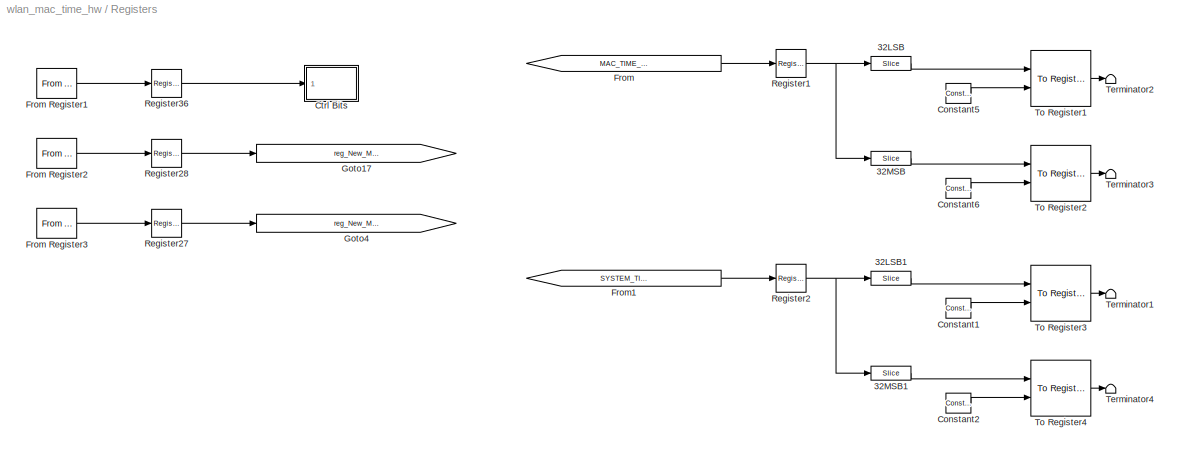
BLOCK [SubSystem] Registers
  FunctionWithSeparateData = off
  MaskHideContents = off
  MinAlgLoopOccurrences = off
  Opaque = off
  Ports = []
  PropExecContextOutsideSubsystem = off
  RTWSystemCode = Auto
  RequestExecContextInheritance = off
  SID = 32
BLOCK [Reference] Registers/32LSB  REF=xbsIndex_r4/Slice
  Ports = [1, 1]
  SID = 33
  SourceBlock = xbsIndex_r4/Slice
  SourceType = Xilinx Bit Slice Extractor Block
  base0 = LSB of Input
  base1 = MSB of Input
  bit0 = 0
  bit1 = 0
  block_type = slice
  block_version = VER_STRING_GOES_HERE
  boolean_output = off
  dbl_ovrd = off
  has_advanced_control = 0
  mode = Lower Bit Location + Width
  nbits = 32
  sg_icon_stat = 40,14,1,1,white,blue,0,1fd851a7,right,,[ ],[ ]
  sggui_pos = 20,20,449,398
BLOCK [Reference] Registers/32LSB1  REF=xbsIndex_r4/Slice
  Ports = [1, 1]
  SID = 143
  SourceBlock = xbsIndex_r4/Slice
  SourceType = Xilinx Bit Slice Extractor Block
  base0 = LSB of Input
  base1 = MSB of Input
  bit0 = 0
  bit1 = 0
  block_type = slice
  block_version = VER_STRING_GOES_HERE
  boolean_output = off
  dbl_ovrd = off
  has_advanced_control = 0
  mode = Lower Bit Location + Width
  nbits = 32
  sg_icon_stat = 40,14,1,1,white,blue,0,1fd851a7,right,,[ ],[ ]
  sggui_pos = 20,20,449,398
BLOCK [Reference] Registers/32MSB  REF=xbsIndex_r4/Slice
  Ports = [1, 1]
  SID = 37
  SourceBlock = xbsIndex_r4/Slice
  SourceType = Xilinx Bit Slice Extractor Block
  base0 = LSB of Input
  base1 = MSB of Input
  bit0 = 0
  bit1 = 0
  block_type = slice
  block_version = VER_STRING_GOES_HERE
  boolean_output = off
  dbl_ovrd = off
  has_advanced_control = 0
  mode = Upper Bit Location + Width
  nbits = 32
  sg_icon_stat = 40,14,1,1,white,blue,0,1fd851a7,right,,[ ],[ ]
  sggui_pos = 20,20,449,398
BLOCK [Reference] Registers/32MSB1  REF=xbsIndex_r4/Slice
  Ports = [1, 1]
  SID = 144
  SourceBlock = xbsIndex_r4/Slice
  SourceType = Xilinx Bit Slice Extractor Block
  base0 = LSB of Input
  base1 = MSB of Input
  bit0 = 0
  bit1 = 0
  block_type = slice
  block_version = VER_STRING_GOES_HERE
  boolean_output = off
  dbl_ovrd = off
  has_advanced_control = 0
  mode = Upper Bit Location + Width
  nbits = 32
  sg_icon_stat = 40,14,1,1,white,blue,0,1fd851a7,right,,[ ],[ ]
  sggui_pos = 20,20,449,398
BLOCK [Reference] Registers/Constant1  REF=xbsIndex_r4/Constant
  Ports = [0, 1]
  SID = 145
  SourceBlock = xbsIndex_r4/Constant
  SourceType = Xilinx Constant Block Block
  arith_type = Boolean
  bin_pt = 0
  block_type = constant
  carry = CIN
  const = 1
  dbl_ovrd = off
  dsp48_infoedit = The use of this block for DSP48 instructions is deprecated.  Please use the Opmode block.
  equ = P=C
  exp_width = 8
  explicit_period = on
  frac_width = 24
  gui_display_data_type = Boolean
  has_advanced_control = 0
  inp1 = P
  inp2 = PCIN>>17
  n_bits = 30
  opr = +
  opselect = C
  period = 1
  preci_type = Single
  sg_icon_stat = 25,20,0,1,white,blue,0,1c72b5be,right,,[ ],[ ]
  sg_mask_display = fprintf('','COMMENT: begin icon graphics');\npatch([0 25 25 0 0 ],[0 0 20 20 0 ],[0.77 0.82 0.91 ]);\nplot([0 25 25 0 0 ],[0 0 20 20 0 ]);\npatch([7.55 10.44 12.44 14.44 16.44 12.44 9.55 7.55 ],[12.22 12.22 14.22 12.22 14.22 14.22 14.22 12.22 ],[1 1 1 ]);\npatch([9.55 12.44 10.44 7.55 9.55 ],[10.22 10.22 12.22 12.22 10.22 ],[0.931 0.946 0.973 ]);\npatch([7.55 10.44 12.44 9.55 7.55 ],[8.22 8.22 10....<+303ch>  <repeated x4 — deduplicated; at blocks: Constant1, Constant2, Constant5, Constant6>
  sggui_pos = -1,-1,-1,-1
BLOCK [Reference] Registers/Constant2  REF=xbsIndex_r4/Constant
  Ports = [0, 1]
  SID = 146
  SourceBlock = xbsIndex_r4/Constant
  SourceType = Xilinx Constant Block Block
  arith_type = Boolean
  bin_pt = 0
  block_type = constant
  carry = CIN
  const = 1
  dbl_ovrd = off
  dsp48_infoedit = The use of this block for DSP48 instructions is deprecated.  Please use the Opmode block.
  equ = P=C
  exp_width = 8
  explicit_period = on
  frac_width = 24
  gui_display_data_type = Boolean
  has_advanced_control = 0
  inp1 = P
  inp2 = PCIN>>17
  n_bits = 30
  opr = +
  opselect = C
  period = 1
  preci_type = Single
  sg_icon_stat = 25,20,0,1,white,blue,0,1c72b5be,right,,[ ],[ ]
  sggui_pos = -1,-1,-1,-1
BLOCK [Reference] Registers/Constant5  REF=xbsIndex_r4/Constant
  Ports = [0, 1]
  SID = 42
  SourceBlock = xbsIndex_r4/Constant
  SourceType = Xilinx Constant Block Block
  arith_type = Boolean
  bin_pt = 0
  block_type = constant
  carry = CIN
  const = 1
  dbl_ovrd = off
  dsp48_infoedit = The use of this block for DSP48 instructions is deprecated.  Please use the Opmode block.
  equ = P=C
  exp_width = 8
  explicit_period = on
  frac_width = 24
  gui_display_data_type = Boolean
  has_advanced_control = 0
  inp1 = P
  inp2 = PCIN>>17
  n_bits = 30
  opr = +
  opselect = C
  period = 1
  preci_type = Single
  sg_icon_stat = 25,20,0,1,white,blue,0,1c72b5be,right,,[ ],[ ]
  sggui_pos = -1,-1,-1,-1
BLOCK [Reference] Registers/Constant6  REF=xbsIndex_r4/Constant
  Ports = [0, 1]
  SID = 43
  SourceBlock = xbsIndex_r4/Constant
  SourceType = Xilinx Constant Block Block
  arith_type = Boolean
  bin_pt = 0
  block_type = constant
  carry = CIN
  const = 1
  dbl_ovrd = off
  dsp48_infoedit = The use of this block for DSP48 instructions is deprecated.  Please use the Opmode block.
  equ = P=C
  exp_width = 8
  explicit_period = on
  frac_width = 24
  gui_display_data_type = Boolean
  has_advanced_control = 0
  inp1 = P
  inp2 = PCIN>>17
  n_bits = 30
  opr = +
  opselect = C
  period = 1
  preci_type = Single
  sg_icon_stat = 25,20,0,1,white,blue,0,1c72b5be,right,,[ ],[ ]
  sggui_pos = -1,-1,-1,-1
BLOCK [SubSystem] Registers/Ctrl Bits
  FunctionWithSeparateData = off
  MaskHideContents = off
  MinAlgLoopOccurrences = off
  Opaque = off
  Ports = [1]
  PropExecContextOutsideSubsystem = off
  RTWSystemCode = Auto
  RequestExecContextInheritance = off
  SID = 155
BLOCK [Inport] Registers/Ctrl Bits/32b
  IconDisplay = Port number
  SID = 156
BLOCK [Goto] Registers/Ctrl Bits/Goto1
  GotoTag = reg_Reset_System_Time
  SID = 158
  TagVisibility = global
BLOCK [Goto] Registers/Ctrl Bits/Goto14
  GotoTag = reg_Load_MAC_Time
  SID = 200
  TagVisibility = global
BLOCK [SubSystem] Registers/Ctrl Bits/Sim Reset
  FunctionWithSeparateData = off
  MaskHideContents = off
  MinAlgLoopOccurrences = off
  Opaque = off
  Ports = [0, 1]
  PropExecContextOutsideSubsystem = off
  RTWSystemCode = Auto
  RequestExecContextInheritance = off
  SID = 177
BLOCK [Sum] Registers/Ctrl Bits/Sim Reset/Add
  InputSameDT = off
  OutDataTypeStr = Inherit: Inherit via internal rule
  Ports = [2, 1]
  SID = 178
  SaturateOnIntegerOverflow = off
BLOCK [Reference] Registers/Ctrl Bits/Sim Reset/Disregard Subsystem  REF=xbsIndex_r4/Disregard Subsystem
  AttributesFormatString = Disregard Subsystem\\nFor Generation
  Ports = []
  SID = 179
  SourceBlock = xbsIndex_r4/Disregard Subsystem
  SourceType = Xilinx Disregard Subsystem For Generation Block
  Tag = discardX
  block_type = disregard
  has_advanced_control = 0
  infoedit = Place this block into a subsystem to have System Generator ignore the subsystem during code generation. This block can be used in combination with the Simulation Multiplexer block to provide an alternative simulation model for another subsystem (e.g., to provide a simulation model for a black box).
  sg_icon_stat = 58,58,-1,-1,darkgray,black,0,07734,right,,[ ],[ ]
  sg_mask_display = fprintf('','COMMENT: begin icon graphics');\npatch([0 58 58 0 0 ],[0 0 58 58 0 ],[0.1 0.1 0.1 ]);\nplot([0 58 58 0 0 ],[0 0 58 58 0 ]);\npatch([11.2 22.76 30.76 38.76 46.76 30.76 19.2 11.2 ],[37.88 37.88 45.88 37.88 45.88 45.88 45.88 37.88 ],[0.33 0.33 0.33 ]);\npatch([19.2 30.76 22.76 11.2 19.2 ],[29.88 29.88 37.88 37.88 29.88 ],[0.261 0.261 0.261 ]);\npatch([11.2 22.76 30.76 19.2 11.2 ],[21.88 2...<+284ch>
  sggui_pos = -1,-1,-1,-1
BLOCK [Outport] Registers/Ctrl Bits/Sim Reset/Out1
  IconDisplay = Port number
  SID = 183
BLOCK [DiscretePulseGenerator] Registers/Ctrl Bits/Sim Reset/Pulse\nGenerator
  Period = 1e6
  PhaseDelay = 1.25e4
  Ports = [0, 1]
  PulseWidth = 2
  SID = 180
BLOCK [DiscretePulseGenerator] Registers/Ctrl Bits/Sim Reset/Pulse\nGenerator1
  Period = 1e6
  PhaseDelay = 2.5e4
  Ports = [0, 1]
  PulseWidth = 2
  SID = 181
BLOCK [Reference] Registers/Ctrl Bits/Sim Reset/sim_only_reset  REF=xbsIndex_r4/Gateway In
  ADCChannel = '1'
  LOCs = {}
  Ports = [1, 1]
  SID = 182
  SourceBlock = xbsIndex_r4/Gateway In
  SourceType = Xilinx Gateway In Block
  UseAsADC = off
  arith_type = Unsigned
  bin_pt = 0
  block_type = gatewayin
  dbl_ovrd = off
  exp_width = 8
  frac_width = 24
  gui_display_data_type = Fixed-point
  has_advanced_control = 0
  hdl_port = on
  inherit_from_input = off
  locs_specified = off
  n_bits = 1
  overflow = Saturate
  period = 1
  preci_type = Single
  quantization = Round  (unbiased: +/- Inf)
  sg_icon_stat = 40,14,1,1,white,yellow,1,00d3666e,right,,[ ],[ ]
  sg_mask_display = fprintf('','COMMENT: begin icon graphics');\npatch([0 40 40 0 0 ],[0 0 14 14 0 ],[0.95 0.93 0.65 ]);\nplot([0 40 40 0 0 ],[0 0 14 14 0 ]);\npatch([15.55 18.44 20.44 22.44 24.44 20.44 17.55 15.55 ],[9.22 9.22 11.22 9.22 11.22 11.22 11.22 9.22 ],[1 1 1 ]);\npatch([17.55 20.44 18.44 15.55 17.55 ],[7.22 7.22 9.22 9.22 7.22 ],[0.985 0.979 0.895 ]);\npatch([15.55 18.44 20.44 17.55 15.55 ],[5.22 5.22 7.2...<+385ch>
  sggui_pos = -1,-1,-1,-1
  timing_constraint = None
  xl_area = [0,0,0,0,0,0,0]
  xl_use_area = off
BLOCK [Reference] Registers/Ctrl Bits/b[0]  REF=xbsIndex_r4/Slice
  Ports = [1, 1]
  SID = 184
  SourceBlock = xbsIndex_r4/Slice
  SourceType = Xilinx Bit Slice Extractor Block
  base0 = LSB of Input
  base1 = MSB of Input
  bit0 = 0
  bit1 = 0
  block_type = slice
  block_version = VER_STRING_GOES_HERE
  boolean_output = on
  dbl_ovrd = off
  has_advanced_control = 0
  mode = Lower Bit Location + Width
  nbits = 1
  sg_icon_stat = 40,14,1,1,white,blue,0,1fd851a7,right,,[ ],[ ]
  sggui_pos = 20,20,449,398
BLOCK [Reference] Registers/Ctrl Bits/b[1]    REF=xbsIndex_r4/Slice
  Ports = [1, 1]
  SID = 189
  SourceBlock = xbsIndex_r4/Slice
  SourceType = Xilinx Bit Slice Extractor Block
  base0 = LSB of Input
  base1 = MSB of Input
  bit0 = 1
  bit1 = 0
  block_type = slice
  block_version = VER_STRING_GOES_HERE
  boolean_output = on
  dbl_ovrd = off
  has_advanced_control = 0
  mode = Lower Bit Location + Width
  nbits = 1
  sg_icon_stat = 40,14,1,1,white,blue,0,1fd851a7,right,,[ ],[ ]
  sggui_pos = 20,20,449,398
BLOCK [Reference] Registers/Ctrl Bits/b[2]  REF=xbsIndex_r4/Slice
  Ports = [1, 1]
  SID = 190
  SourceBlock = xbsIndex_r4/Slice
  SourceType = Xilinx Bit Slice Extractor Block
  base0 = LSB of Input
  base1 = MSB of Input
  bit0 = 2
  bit1 = 0
  block_type = slice
  block_version = VER_STRING_GOES_HERE
  boolean_output = on
  dbl_ovrd = off
  has_advanced_control = 0
  mode = Lower Bit Location + Width
  nbits = 1
  sg_icon_stat = 40,14,1,1,white,blue,0,1fd851a7,right,,[ ],[ ]
  sggui_pos = 20,20,449,398
BLOCK [Reference] Registers/Ctrl Bits/b[3]  REF=xbsIndex_r4/Slice
  Ports = [1, 1]
  SID = 191
  SourceBlock = xbsIndex_r4/Slice
  SourceType = Xilinx Bit Slice Extractor Block
  base0 = LSB of Input
  base1 = MSB of Input
  bit0 = 3
  bit1 = 0
  block_type = slice
  block_version = VER_STRING_GOES_HERE
  boolean_output = on
  dbl_ovrd = off
  has_advanced_control = 0
  mode = Lower Bit Location + Width
  nbits = 1
  sg_icon_stat = 40,14,1,1,white,blue,0,1fd851a7,right,,[ ],[ ]
  sggui_pos = 20,20,449,398
BLOCK [Reference] Registers/Ctrl Bits/b[4]  REF=xbsIndex_r4/Slice
  Ports = [1, 1]
  SID = 192
  SourceBlock = xbsIndex_r4/Slice
  SourceType = Xilinx Bit Slice Extractor Block
  base0 = LSB of Input
  base1 = MSB of Input
  bit0 = 4
  bit1 = 0
  block_type = slice
  block_version = VER_STRING_GOES_HERE
  boolean_output = on
  dbl_ovrd = off
  has_advanced_control = 0
  mode = Lower Bit Location + Width
  nbits = 1
  sg_icon_stat = 40,14,1,1,white,blue,0,1fd851a7,right,,[ ],[ ]
  sggui_pos = 20,20,449,398
BLOCK [Reference] Registers/Ctrl Bits/b[5]  REF=xbsIndex_r4/Slice
  Ports = [1, 1]
  SID = 193
  SourceBlock = xbsIndex_r4/Slice
  SourceType = Xilinx Bit Slice Extractor Block
  base0 = LSB of Input
  base1 = MSB of Input
  bit0 = 5
  bit1 = 0
  block_type = slice
  block_version = VER_STRING_GOES_HERE
  boolean_output = on
  dbl_ovrd = off
  has_advanced_control = 0
  mode = Lower Bit Location + Width
  nbits = 1
  sg_icon_stat = 40,14,1,1,white,blue,0,1fd851a7,right,,[ ],[ ]
  sggui_pos = 20,20,449,398
BLOCK [Reference] Registers/Ctrl Bits/b[6]  REF=xbsIndex_r4/Slice
  Ports = [1, 1]
  SID = 194
  SourceBlock = xbsIndex_r4/Slice
  SourceType = Xilinx Bit Slice Extractor Block
  base0 = LSB of Input
  base1 = MSB of Input
  bit0 = 6
  bit1 = 0
  block_type = slice
  block_version = VER_STRING_GOES_HERE
  boolean_output = on
  dbl_ovrd = off
  has_advanced_control = 0
  mode = Lower Bit Location + Width
  nbits = 1
  sg_icon_stat = 40,14,1,1,white,blue,0,1fd851a7,right,,[ ],[ ]
  sggui_pos = 20,20,449,398
BLOCK [Reference] Registers/Ctrl Bits/b[7]  REF=xbsIndex_r4/Slice
  Ports = [1, 1]
  SID = 195
  SourceBlock = xbsIndex_r4/Slice
  SourceType = Xilinx Bit Slice Extractor Block
  base0 = LSB of Input
  base1 = MSB of Input
  bit0 = 7
  bit1 = 0
  block_type = slice
  block_version = VER_STRING_GOES_HERE
  boolean_output = on
  dbl_ovrd = off
  has_advanced_control = 0
  mode = Lower Bit Location + Width
  nbits = 1
  sg_icon_stat = 40,14,1,1,white,blue,0,1fd851a7,right,,[ ],[ ]
  sggui_pos = 20,20,449,398
BLOCK [From] Registers/From
  GotoTag = MAC_TIME_USEC
  SID = 47
  TagVisibility = global
BLOCK [Reference] Registers/From Register1  REF=xbsIndex_r4/From Register
  AttributesFormatString = << %<shared_memory_name> >>
  Ports = [0, 1]
  SID = 198
  SourceBlock = xbsIndex_r4/From Register
  SourceType = Xilinx Shared Memory Based From Register Block
  arith_type = Unsigned
  bin_pt = 0
  block_type = fromreg
  dbl_ovrd = off
  gui_display_data_type = Fixed-point
  has_advanced_control = 0
  infoedit = Register block that reads data to a shared memory register.  Delay of one sample period.
  init = 0
  n_bits = 32
  ownership = Locally owned and initialized
  period = 1
  preci_type = Single
  sg_icon_stat = 40,30,0,1,white,blue,0,b27a07ff,right,,[ ],[ ]
  sg_mask_display = fprintf('','COMMENT: begin icon graphics');\npatch([0 40 40 0 0 ],[0 0 30 30 0 ],[0.77 0.82 0.91 ]);\nplot([0 40 40 0 0 ],[0 0 30 30 0 ]);\npatch([11.1 16.88 20.88 24.88 28.88 20.88 15.1 11.1 ],[19.44 19.44 23.44 19.44 23.44 23.44 23.44 19.44 ],[1 1 1 ]);\npatch([15.1 20.88 16.88 11.1 15.1 ],[15.44 15.44 19.44 19.44 15.44 ],[0.931 0.946 0.973 ]);\npatch([11.1 16.88 20.88 15.1 11.1 ],[11.44 11.44 1...<+312ch>  <repeated x3 — deduplicated; at blocks: From Register1, From Register2, From Register3>
  sggui_pos = -1,-1,-1,-1
  shared_memory_name = 'Control'
  xl_area = [0,0,0,0,0,0,0]
  xl_use_area = off
BLOCK [Reference] Registers/From Register2  REF=xbsIndex_r4/From Register
  AttributesFormatString = << %<shared_memory_name> >>
  Ports = [0, 1]
  SID = 49
  SourceBlock = xbsIndex_r4/From Register
  SourceType = Xilinx Shared Memory Based From Register Block
  arith_type = Unsigned
  bin_pt = 0
  block_type = fromreg
  dbl_ovrd = off
  gui_display_data_type = Fixed-point
  has_advanced_control = 0
  infoedit = Register block that reads data to a shared memory register.  Delay of one sample period.
  init = 0
  n_bits = 32
  ownership = Locally owned and initialized
  period = 1
  preci_type = Single
  sg_icon_stat = 40,30,0,1,white,blue,0,b27a07ff,right,,[ ],[ ]
  sggui_pos = -1,-1,-1,-1
  shared_memory_name = 'NEW_MAC_TIME_LSB'
  xl_area = [0,0,0,0,0,0,0]
  xl_use_area = off
BLOCK [Reference] Registers/From Register3  REF=xbsIndex_r4/From Register
  AttributesFormatString = << %<shared_memory_name> >>
  Ports = [0, 1]
  SID = 48
  SourceBlock = xbsIndex_r4/From Register
  SourceType = Xilinx Shared Memory Based From Register Block
  arith_type = Unsigned
  bin_pt = 0
  block_type = fromreg
  dbl_ovrd = off
  gui_display_data_type = Fixed-point
  has_advanced_control = 0
  infoedit = Register block that reads data to a shared memory register.  Delay of one sample period.
  init = 0
  n_bits = 32
  ownership = Locally owned and initialized
  period = 1
  preci_type = Single
  sg_icon_stat = 40,30,0,1,white,blue,0,b27a07ff,right,,[ ],[ ]
  sggui_pos = -1,-1,-1,-1
  shared_memory_name = 'NEW_MAC_TIME_MSB'
  xl_area = [0,0,0,0,0,0,0]
  xl_use_area = off
BLOCK [From] Registers/From1
  GotoTag = SYSTEM_TIME_USEC
  SID = 147
  TagVisibility = global
BLOCK [Goto] Registers/Goto17
  GotoTag = reg_New_MAC_Time_LSB
  SID = 56
  TagVisibility = global
BLOCK [Goto] Registers/Goto4
  GotoTag = reg_New_MAC_Time_MSB
  SID = 58
  TagVisibility = global
BLOCK [Reference] Registers/Register1  REF=xbsIndex_r4/Register
  Ports = [1, 1]
  SID = 71
  SourceBlock = xbsIndex_r4/Register
  SourceType = Xilinx Register Block
  block_type = register
  dbl_ovrd = off
  en = off
  has_advanced_control = 0
  init = 0
  rst = off
  sg_icon_stat = 30,28,1,1,white,blue,0,c80657c5,right,,[ ],[ ]
  sggui_pos = -1,-1,-1,-1
  xl_area = [0,0,0,0,0,0,0]
  xl_use_area = off
BLOCK [Reference] Registers/Register2  REF=xbsIndex_r4/Register
  Ports = [1, 1]
  SID = 148
  SourceBlock = xbsIndex_r4/Register
  SourceType = Xilinx Register Block
  block_type = register
  dbl_ovrd = off
  en = off
  has_advanced_control = 0
  init = 0
  rst = off
  sg_icon_stat = 30,28,1,1,white,blue,0,c80657c5,right,,[ ],[ ]
  sggui_pos = -1,-1,-1,-1
  xl_area = [0,0,0,0,0,0,0]
  xl_use_area = off
BLOCK [Reference] Registers/Register27  REF=xbsIndex_r4/Register
  Ports = [1, 1]
  SID = 76
  SourceBlock = xbsIndex_r4/Register
  SourceType = Xilinx Register Block
  block_type = register
  dbl_ovrd = off
  en = off
  has_advanced_control = 0
  init = 0
  rst = off
  sg_icon_stat = 30,28,1,1,white,blue,0,c80657c5,right,,[ ],[ ]
  sggui_pos = -1,-1,-1,-1
  xl_area = [0,0,0,0,0,0,0]
  xl_use_area = off
BLOCK [Reference] Registers/Register28  REF=xbsIndex_r4/Register
  Ports = [1, 1]
  SID = 77
  SourceBlock = xbsIndex_r4/Register
  SourceType = Xilinx Register Block
  block_type = register
  dbl_ovrd = off
  en = off
  has_advanced_control = 0
  init = 0
  rst = off
  sg_icon_stat = 30,28,1,1,white,blue,0,c80657c5,right,,[ ],[ ]
  sggui_pos = -1,-1,-1,-1
  xl_area = [0,0,0,0,0,0,0]
  xl_use_area = off
BLOCK [Reference] Registers/Register36  REF=xbsIndex_r4/Register
  Ports = [1, 1]
  SID = 199
  SourceBlock = xbsIndex_r4/Register
  SourceType = Xilinx Register Block
  block_type = register
  dbl_ovrd = off
  en = off
  has_advanced_control = 0
  init = 0
  rst = off
  sg_icon_stat = 30,28,1,1,white,blue,0,c80657c5,right,,[ ],[ ]
  sggui_pos = -1,-1,-1,-1
  xl_area = [0,0,0,0,0,0,0]
  xl_use_area = off
BLOCK [Terminator] Registers/Terminator1
  SID = 150
BLOCK [Terminator] Registers/Terminator2
  SID = 89
BLOCK [Terminator] Registers/Terminator3
  SID = 90
BLOCK [Terminator] Registers/Terminator4
  SID = 151
BLOCK [Reference] Registers/To Register1  REF=xbsIndex_r4/To Register
  AttributesFormatString = << %<shared_memory_name> >>
  Ports = [2, 1]
  SID = 95
  SourceBlock = xbsIndex_r4/To Register
  SourceType = Xilinx Shared Memory Based To Register Block
  arith_type = Unsigned
  bin_pt = 0
  block_type = toreg
  dbl_ovrd = off
  explicit_data_type = on
  gui_display_data_type = Fixed-point
  has_advanced_control = 0
  infoedit = Register block that writes data to a shared memory register.  Delay of one sample period.
  init = 0
  n_bits = 32
  ownership = Locally owned and initialized
  preci_type = Single
  sg_icon_stat = 60,56,2,1,white,blue,0,10ab453e,right,,[ ],[ ]
  sggui_pos = -1,-1,-1,-1
  shared_memory_name = 'MAC_TIME_USEC_LSB'
  xl_area = [0,0,0,0,0,0,0]
  xl_use_area = off
BLOCK [Reference] Registers/To Register2  REF=xbsIndex_r4/To Register
  AttributesFormatString = << %<shared_memory_name> >>
  Ports = [2, 1]
  SID = 96
  SourceBlock = xbsIndex_r4/To Register
  SourceType = Xilinx Shared Memory Based To Register Block
  arith_type = Unsigned
  bin_pt = 0
  block_type = toreg
  dbl_ovrd = off
  explicit_data_type = on
  gui_display_data_type = Fixed-point
  has_advanced_control = 0
  infoedit = Register block that writes data to a shared memory register.  Delay of one sample period.
  init = 0
  n_bits = 32
  ownership = Locally owned and initialized
  preci_type = Single
  sg_icon_stat = 60,56,2,1,white,blue,0,10ab453e,right,,[ ],[ ]
  sggui_pos = -1,-1,-1,-1
  shared_memory_name = 'MAC_TIME_USEC_MSB'
  xl_area = [0,0,0,0,0,0,0]
  xl_use_area = off
BLOCK [Reference] Registers/To Register3  REF=xbsIndex_r4/To Register
  AttributesFormatString = << %<shared_memory_name> >>
  Ports = [2, 1]
  SID = 152
  SourceBlock = xbsIndex_r4/To Register
  SourceType = Xilinx Shared Memory Based To Register Block
  arith_type = Unsigned
  bin_pt = 0
  block_type = toreg
  dbl_ovrd = off
  explicit_data_type = on
  gui_display_data_type = Fixed-point
  has_advanced_control = 0
  infoedit = Register block that writes data to a shared memory register.  Delay of one sample period.
  init = 0
  n_bits = 32
  ownership = Locally owned and initialized
  preci_type = Single
  sg_icon_stat = 60,56,2,1,white,blue,0,10ab453e,right,,[ ],[ ]
  sggui_pos = -1,-1,-1,-1
  shared_memory_name = 'SYSTEM_TIME_USEC_LSB'
  xl_area = [0,0,0,0,0,0,0]
  xl_use_area = off
BLOCK [Reference] Registers/To Register4  REF=xbsIndex_r4/To Register
  AttributesFormatString = << %<shared_memory_name> >>
  Ports = [2, 1]
  SID = 153
  SourceBlock = xbsIndex_r4/To Register
  SourceType = Xilinx Shared Memory Based To Register Block
  arith_type = Unsigned
  bin_pt = 0
  block_type = toreg
  dbl_ovrd = off
  explicit_data_type = on
  gui_display_data_type = Fixed-point
  has_advanced_control = 0
  infoedit = Register block that writes data to a shared memory register.  Delay of one sample period.
  init = 0
  n_bits = 32
  ownership = Locally owned and initialized
  preci_type = Single
  sg_icon_stat = 60,56,2,1,white,blue,0,10ab453e,right,,[ ],[ ]
  sggui_pos = -1,-1,-1,-1
  shared_memory_name = 'SYSTEM_TIME_USEC_MSB'
  xl_area = [0,0,0,0,0,0,0]
  xl_use_area = off
BLOCK [Reference] SYSTEM_TIME_LSB  REF=xbsIndex_r4/Gateway Out
  DACChannel = '1'
  LOCs = {}
  Ports = [1, 1]
  SID = 134
  SourceBlock = xbsIndex_r4/Gateway Out
  SourceType = Xilinx Gateway Out Block
  UseAsDAC = off
  block_type = gatewayout
  has_advanced_control = 0
  hdl_port = on
  inherit_from_input = off
  locs_specified = off
  sg_icon_stat = 60,20,1,1,white,yellow,1,cc31b7ac,right,,[ ],[ ]
  sggui_pos = -1,-1,-1,-1
  timing_constraint = None
  xl_area = [0,0,0,0,0,0,0]
  xl_use_area = off
BLOCK [Reference] SYSTEM_TIME_MSB  REF=xbsIndex_r4/Gateway Out
  DACChannel = '1'
  LOCs = {}
  Ports = [1, 1]
  SID = 135
  SourceBlock = xbsIndex_r4/Gateway Out
  SourceType = Xilinx Gateway Out Block
  UseAsDAC = off
  block_type = gatewayout
  has_advanced_control = 0
  hdl_port = on
  inherit_from_input = off
  locs_specified = off
  sg_icon_stat = 60,20,1,1,white,yellow,1,cc31b7ac,right,,[ ],[ ]
  sggui_pos = -1,-1,-1,-1
  timing_constraint = None
  xl_area = [0,0,0,0,0,0,0]
  xl_use_area = off
BLOCK [Scope] Scope
  DataFormat = StructureWithTime
  Floating = off
  MaskIconFrame = on
  MaskIconOpaque = on
  MaskIconRotate = none
  MaskIconUnits = autoscale
  MaskPortRotate = default
  NumInputPorts = 3
  Ports = [3]
  SID = 220
  SampleTime = 0
  SaveName = ScopeData2
  YMax = 5~5~5
  YMin = -5~-5~-5
  ZoomMode = xonly
BLOCK [Reference] System Time\n64-bit Counter  REF=xbsIndex_r4/Counter
  Ports = [2, 1]
  SID = 11
  SourceBlock = xbsIndex_r4/Counter
  SourceType = Xilinx Counter Block
  arith_type = Unsigned
  bin_pt = 0
  block_type = counter
  cnt_by_val = 1
  cnt_to = Inf
  cnt_type = Free Running
  dbl_ovrd = off
  en = on
  explicit_period = off
  has_advanced_control = 0
  implementation = Fabric
  infoedit = Hardware notes: Free running counters are the least expensive in hardware.  A count limited counter is implemented by combining a counter with a comparator.
  load_pin = off
  n_bits = 64
  operation = Up
  period = 1
  rst = on
  sg_icon_stat = 60,55,2,1,white,blue,0,ae3608d6,right,,[ ],[ ]
  sg_mask_display = fprintf('','COMMENT: begin icon graphics');\npatch([0 60 60 0 0 ],[0 0 55 55 0 ],[0.77 0.82 0.91 ]);\nplot([0 60 60 0 0 ],[0 0 55 55 0 ]);\npatch([14.425 24.54 31.54 38.54 45.54 31.54 21.425 14.425 ],[34.77 34.77 41.77 34.77 41.77 41.77 41.77 34.77 ],[1 1 1 ]);\npatch([21.425 31.54 24.54 14.425 21.425 ],[27.77 27.77 34.77 34.77 27.77 ],[0.931 0.946 0.973 ]);\npatch([14.425 24.54 31.54 21.425 14.42...<+447ch>
  sggui_pos = -1,-1,-1,-1
  start_count = 0
  use_behavioral_HDL = off
  xl_area = [0,0,0,0,0,0,0]
  xl_use_area = off
BLOCK [Reference] TIME_USEC_FRAC  REF=xbsIndex_r4/Gateway Out
  DACChannel = '1'
  LOCs = {}
  Ports = [1, 1]
  SID = 217
  SourceBlock = xbsIndex_r4/Gateway Out
  SourceType = Xilinx Gateway Out Block
  UseAsDAC = off
  block_type = gatewayout
  has_advanced_control = 0
  hdl_port = on
  inherit_from_input = off
  locs_specified = off
  sg_icon_stat = 60,20,1,1,white,yellow,1,cc31b7ac,right,,[ ],[ ]
  sggui_pos = -1,-1,-1,-1
  timing_constraint = None
  xl_area = [0,0,0,0,0,0,0]
  xl_use_area = off
BLOCK [Reference] USEC_PULSE  REF=xbsIndex_r4/Gateway Out
  DACChannel = '1'
  LOCs = {}
  Ports = [1, 1]
  SID = 211
  SourceBlock = xbsIndex_r4/Gateway Out
  SourceType = Xilinx Gateway Out Block
  UseAsDAC = off
  block_type = gatewayout
  has_advanced_control = 0
  hdl_port = on
  inherit_from_input = off
  locs_specified = off
  sg_icon_stat = 60,20,1,1,white,yellow,1,cc31b7ac,right,,[ ],[ ]
  sggui_pos = -1,-1,-1,-1
  timing_constraint = None
  xl_area = [0,0,0,0,0,0,0]
  xl_use_area = off
BLOCK [SubSystem] usec Pulse
  FunctionWithSeparateData = off
  MaskHideContents = off
  MinAlgLoopOccurrences = off
  Opaque = off
  Ports = [0, 2]
  PropExecContextOutsideSubsystem = off
  RTWSystemCode = Auto
  RequestExecContextInheritance = off
  SID = 24
BLOCK [Reference] usec Pulse/Clk->usec  REF=xbsIndex_r4/Counter
  Ports = [1, 1]
  SID = 26
  SourceBlock = xbsIndex_r4/Counter
  SourceType = Xilinx Counter Block
  arith_type = Unsigned
  bin_pt = 0
  block_type = counter
  cnt_by_val = 1
  cnt_to = 159
  cnt_type = Free Running
  dbl_ovrd = off
  en = off
  explicit_period = off
  has_advanced_control = 0
  implementation = Fabric
  infoedit = Hardware notes: Free running counters are the least expensive in hardware.  A count limited counter is implemented by combining a counter with a comparator.
  load_pin = off
  n_bits = 8
  operation = Up
  period = 1
  rst = on
  sg_icon_stat = 65,44,1,1,white,blue,0,803eba70,right,,[ ],[ ]
  sg_mask_display = fprintf('','COMMENT: begin icon graphics');\npatch([0 65 65 0 0 ],[0 0 44 44 0 ],[0.77 0.82 0.91 ]);\nplot([0 65 65 0 0 ],[0 0 44 44 0 ]);\npatch([18.65 27.32 33.32 39.32 45.32 33.32 24.65 18.65 ],[28.66 28.66 34.66 28.66 34.66 34.66 34.66 28.66 ],[1 1 1 ]);\npatch([24.65 33.32 27.32 18.65 24.65 ],[22.66 22.66 28.66 28.66 22.66 ],[0.931 0.946 0.973 ]);\npatch([18.65 27.32 33.32 24.65 18.65 ],[16.6...<+391ch>
  sggui_pos = -1,-1,-1,-1
  start_count = 0
  use_behavioral_HDL = off
  xl_area = [0,0,0,0,0,0,0]
  xl_use_area = off
BLOCK [Reference] usec Pulse/Constant1  REF=xbsIndex_r4/Constant
  Ports = [0, 1]
  SID = 27
  SourceBlock = xbsIndex_r4/Constant
  SourceType = Xilinx Constant Block Block
  arith_type = Unsigned
  bin_pt = 0
  block_type = constant
  block_version = 8.2.02
  carry = CIN
  const = 159
  dbl_ovrd = off
  dsp48_infoedit = The use of this block for DSP48 instructions is deprecated.  Please use the Opmode block.
  equ = P=C
  exp_width = 8
  explicit_period = on
  frac_width = 24
  gui_display_data_type = Fixed-point
  has_advanced_control = 0
  inp1 = P
  inp2 = PCIN>>17
  n_bits = 8
  opr = +
  opselect = C
  period = 1
  preci_type = Single
  sg_icon_stat = 20,22,0,1,white,blue,0,04b97b88,right,,[ ],[ ]
  sg_mask_display = fprintf('','COMMENT: begin icon graphics');\npatch([0 20 20 0 0 ],[0 0 22 22 0 ],[0.77 0.82 0.91 ]);\nplot([0 20 20 0 0 ],[0 0 22 22 0 ]);\npatch([5.55 8.44 10.44 12.44 14.44 10.44 7.55 5.55 ],[13.22 13.22 15.22 13.22 15.22 15.22 15.22 13.22 ],[1 1 1 ]);\npatch([7.55 10.44 8.44 5.55 7.55 ],[11.22 11.22 13.22 13.22 11.22 ],[0.931 0.946 0.973 ]);\npatch([5.55 8.44 10.44 7.55 5.55 ],[9.22 9.22 11.22 ...<+301ch>
  sggui_pos = -1,-1,-1,-1
BLOCK [Reference] usec Pulse/Relational  REF=xbsIndex_r4/Relational
  Ports = [2, 1]
  SID = 29
  SourceBlock = xbsIndex_r4/Relational
  SourceType = Xilinx Arithmetic Relational Operator Block
  block_type = relational
  dbl_ovrd = off
  en = off
  has_advanced_control = 0
  latency = 0
  mode = a=b
  sg_icon_stat = 55,56,2,1,white,blue,0,2a81ff49,right,,[ ],[ ]
  sg_mask_display = fprintf('','COMMENT: begin icon graphics');\npatch([0 55 55 0 0 ],[0 0 56 56 0 ],[0.77 0.82 0.91 ]);\nplot([0 55 55 0 0 ],[0 0 56 56 0 ]);\npatch([11.425 21.54 28.54 35.54 42.54 28.54 18.425 11.425 ],[35.77 35.77 42.77 35.77 42.77 42.77 42.77 35.77 ],[1 1 1 ]);\npatch([18.425 28.54 21.54 11.425 18.425 ],[28.77 28.77 35.77 35.77 28.77 ],[0.931 0.946 0.973 ]);\npatch([11.425 21.54 28.54 18.425 11.42...<+473ch>
  sggui_pos = -1,-1,-1,-1
  xl_area = [0,0,0,0,0,0,0]
  xl_use_area = off
BLOCK [Outport] usec Pulse/uSec
  IconDisplay = Port number
  SID = 30
BLOCK [Outport] usec Pulse/uSec Fractional Part
  IconDisplay = Port number
  Port = 2
  SID = 216
ANNOTATION (root): <copyright redacted>\n\nDistributed under the Mango Reference Design License:\nhttp://mangocomm.com/802.11/license
ANNOTATION (root): Critical that the fractional and integer parts of the timestamps\nhave the same latency. Otherwise consumers will observe a fractional\npart that wraps at a different time than the integer part increments.
ANNOTATION Changelog: 1.00.a:\nNew wlan_mac_time_hw core, with separate MAC and System usec counters\n\n1.00.<path>:\nAdded TIME_USEC_FRAC output, copy of count-to-160 counter that defines\n microsecond boundary\n\n1.00.d:\nAligned latencies for integer and fractional parts of time outputs
ANNOTATION Posedge: Rising Edge Detection
LINE 32LSB1:1 -> Register6:1
LINE 32LSB:1 -> Register2:1
LINE 32MSB1:1 -> Register5:1
LINE 32MSB:1 -> Register1:1
LINE Concat:1 -> MAC Time\n64-bit Counter:2
LINE EDK Processor/AXI_ARESETN:1 -> EDK Processor/memmap:1
LINE EDK Processor/Constant10:1 -> EDK Processor/S_AXI_AWADDR:1
LINE EDK Processor/Constant11:1 -> EDK Processor/S_AXI_AWBURST:1
LINE EDK Processor/Constant12:1 -> EDK Processor/S_AXI_AWCACHE:1
LINE EDK Processor/Constant13:1 -> EDK Processor/S_AXI_AWID:1
LINE EDK Processor/Constant14:1 -> EDK Processor/S_AXI_AWLEN:1
LINE EDK Processor/Constant15:1 -> EDK Processor/S_AXI_AWLOCK:1
LINE EDK Processor/Constant16:1 -> EDK Processor/S_AXI_AWPROT:1
LINE EDK Processor/Constant17:1 -> EDK Processor/S_AXI_AWSIZE:1
LINE EDK Processor/Constant18:1 -> EDK Processor/S_AXI_AWVALID:1
LINE EDK Processor/Constant19:1 -> EDK Processor/S_AXI_BREADY:1
LINE EDK Processor/Constant1:1 -> EDK Processor/S_AXI_ARADDR:1
LINE EDK Processor/Constant20:1 -> EDK Processor/S_AXI_RREADY:1
LINE EDK Processor/Constant21:1 -> EDK Processor/S_AXI_WDATA:1
LINE EDK Processor/Constant22:1 -> EDK Processor/S_AXI_WLAST:1
LINE EDK Processor/Constant23:1 -> EDK Processor/S_AXI_WSTRB:1
LINE EDK Processor/Constant24:1 -> EDK Processor/S_AXI_WVALID:1
LINE EDK Processor/Constant2:1 -> EDK Processor/S_AXI_ARBURST:1
LINE EDK Processor/Constant3:1 -> EDK Processor/S_AXI_ARCACHE:1
LINE EDK Processor/Constant4:1 -> EDK Processor/S_AXI_ARID:1
LINE EDK Processor/Constant5:1 -> EDK Processor/S_AXI_ARLEN:1
LINE EDK Processor/Constant6:1 -> EDK Processor/S_AXI_ARLOCK:1
LINE EDK Processor/Constant7:1 -> EDK Processor/S_AXI_ARPROT:1
LINE EDK Processor/Constant8:1 -> EDK Processor/S_AXI_ARSIZE:1
LINE EDK Processor/Constant9:1 -> EDK Processor/S_AXI_ARVALID:1
LINE EDK Processor/Constant:1 -> EDK Processor/AXI_ARESETN:1
LINE EDK Processor/From Register1:1 -> EDK Processor/memmap:27
LINE EDK Processor/From Register2:1 -> EDK Processor/memmap:28
LINE EDK Processor/From Register3:1 -> EDK Processor/memmap:29
LINE EDK Processor/From Register:1 -> EDK Processor/memmap:26
LINE EDK Processor/S_AXI_ARADDR:1 -> EDK Processor/memmap:2
LINE EDK Processor/S_AXI_ARBURST:1 -> EDK Processor/memmap:3
LINE EDK Processor/S_AXI_ARCACHE:1 -> EDK Processor/memmap:4
LINE EDK Processor/S_AXI_ARID:1 -> EDK Processor/memmap:5
LINE EDK Processor/S_AXI_ARLEN:1 -> EDK Processor/memmap:6
LINE EDK Processor/S_AXI_ARLOCK:1 -> EDK Processor/memmap:7
LINE EDK Processor/S_AXI_ARPROT:1 -> EDK Processor/memmap:8
LINE EDK Processor/S_AXI_ARREADY:1 -> EDK Processor/Terminator:1
LINE EDK Processor/S_AXI_ARSIZE:1 -> EDK Processor/memmap:9
LINE EDK Processor/S_AXI_ARVALID:1 -> EDK Processor/memmap:10
LINE EDK Processor/S_AXI_AWADDR:1 -> EDK Processor/memmap:11
LINE EDK Processor/S_AXI_AWBURST:1 -> EDK Processor/memmap:12
LINE EDK Processor/S_AXI_AWCACHE:1 -> EDK Processor/memmap:13
LINE EDK Processor/S_AXI_AWID:1 -> EDK Processor/memmap:14
LINE EDK Processor/S_AXI_AWLEN:1 -> EDK Processor/memmap:15
LINE EDK Processor/S_AXI_AWLOCK:1 -> EDK Processor/memmap:16
LINE EDK Processor/S_AXI_AWPROT:1 -> EDK Processor/memmap:17
LINE EDK Processor/S_AXI_AWREADY:1 -> EDK Processor/Terminator1:1
LINE EDK Processor/S_AXI_AWSIZE:1 -> EDK Processor/memmap:18
LINE EDK Processor/S_AXI_AWVALID:1 -> EDK Processor/memmap:19
LINE EDK Processor/S_AXI_BID:1 -> EDK Processor/Terminator2:1
LINE EDK Processor/S_AXI_BREADY:1 -> EDK Processor/memmap:20
LINE EDK Processor/S_AXI_BRESP:1 -> EDK Processor/Terminator3:1
LINE EDK Processor/S_AXI_BVALID:1 -> EDK Processor/Terminator4:1
LINE EDK Processor/S_AXI_RDATA:1 -> EDK Processor/Terminator5:1
LINE EDK Processor/S_AXI_RID:1 -> EDK Processor/Terminator6:1
LINE EDK Processor/S_AXI_RLAST:1 -> EDK Processor/Terminator7:1
LINE EDK Processor/S_AXI_RREADY:1 -> EDK Processor/memmap:21
LINE EDK Processor/S_AXI_RRESP:1 -> EDK Processor/Terminator8:1
LINE EDK Processor/S_AXI_RVALID:1 -> EDK Processor/Terminator9:1
LINE EDK Processor/S_AXI_WDATA:1 -> EDK Processor/memmap:22
LINE EDK Processor/S_AXI_WLAST:1 -> EDK Processor/memmap:23
LINE EDK Processor/S_AXI_WREADY:1 -> EDK Processor/Terminator10:1
LINE EDK Processor/S_AXI_WSTRB:1 -> EDK Processor/memmap:24
LINE EDK Processor/S_AXI_WVALID:1 -> EDK Processor/memmap:25
LINE EDK Processor/To Register1:1 -> EDK Processor/memmap:31
LINE EDK Processor/To Register2:1 -> EDK Processor/memmap:32
LINE EDK Processor/To Register:1 -> EDK Processor/memmap:30
LINE EDK Processor/memmap:1 -> EDK Processor/S_AXI_ARREADY:1
LINE EDK Processor/memmap:10 -> EDK Processor/S_AXI_RVALID:1
LINE EDK Processor/memmap:11 -> EDK Processor/S_AXI_WREADY:1
LINE EDK Processor/memmap:12 -> EDK Processor/To Register:1
LINE EDK Processor/memmap:13 -> EDK Processor/To Register:2
LINE EDK Processor/memmap:14 -> EDK Processor/To Register1:1
LINE EDK Processor/memmap:15 -> EDK Processor/To Register1:2
LINE EDK Processor/memmap:16 -> EDK Processor/To Register2:1
LINE EDK Processor/memmap:17 -> EDK Processor/To Register2:2
LINE EDK Processor/memmap:2 -> EDK Processor/S_AXI_AWREADY:1
LINE EDK Processor/memmap:3 -> EDK Processor/S_AXI_BID:1
LINE EDK Processor/memmap:4 -> EDK Processor/S_AXI_BRESP:1
LINE EDK Processor/memmap:5 -> EDK Processor/S_AXI_BVALID:1
LINE EDK Processor/memmap:6 -> EDK Processor/S_AXI_RDATA:1
LINE EDK Processor/memmap:7 -> EDK Processor/S_AXI_RID:1
LINE EDK Processor/memmap:8 -> EDK Processor/S_AXI_RLAST:1
LINE EDK Processor/memmap:9 -> EDK Processor/S_AXI_RRESP:1
LINE From19:1 -> Concat:2
LINE From1:1 -> Concat:1
LINE From2:1 -> System Time\n64-bit Counter:1
NET From3:1 -> 32LSB:1, 32MSB:1
NET From4:1 -> 32LSB1:1, 32MSB1:1
LINE From5:1 -> Posedge:1
LINE Logical:1 -> MAC Time\n64-bit Counter:3
LINE MAC Time\n64-bit Counter:1 -> Register8:1
LINE MAC_TIME_LSB:1 -> Scope:1
LINE MAC_TIME_MSB:1 -> Scope:2
NET Posedge/D:1 -> Posedge/Delay:1, Posedge/Logical1:2
LINE Posedge/Delay:1 -> Posedge/Inverter:1
LINE Posedge/Inverter:1 -> Posedge/Logical1:1
LINE Posedge/Logical1:1 -> Posedge/Q:1
NET Posedge:1 -> Logical:1, MAC Time\n64-bit Counter:1
LINE Register10:1 -> USEC_PULSE:1
LINE Register11:1 -> Register12:1
LINE Register12:1 -> TIME_USEC_FRAC:1
LINE Register13:1 -> Register11:1
LINE Register1:1 -> Register:1
LINE Register2:1 -> Register3:1
LINE Register3:1 -> MAC_TIME_LSB:1
LINE Register4:1 -> SYSTEM_TIME_MSB:1
LINE Register50:1 -> Goto:1
LINE Register5:1 -> Register4:1
LINE Register6:1 -> Register7:1
LINE Register7:1 -> SYSTEM_TIME_LSB:1
LINE Register8:1 -> Goto1:1
LINE Register9:1 -> Register10:1
LINE Register:1 -> MAC_TIME_MSB:1
LINE Registers/32LSB1:1 -> Registers/To Register3:1
LINE Registers/32LSB:1 -> Registers/To Register1:1
LINE Registers/32MSB1:1 -> Registers/To Register4:1
LINE Registers/32MSB:1 -> Registers/To Register2:1
LINE Registers/Constant1:1 -> Registers/To Register3:2
LINE Registers/Constant2:1 -> Registers/To Register4:2
LINE Registers/Constant5:1 -> Registers/To Register1:2
LINE Registers/Constant6:1 -> Registers/To Register2:2
NET Registers/Ctrl Bits/32b:1 -> Registers/Ctrl Bits/b[0]:1, Registers/Ctrl Bits/b[1]  :1, Registers/Ctrl Bits/b[2]:1, Registers/Ctrl Bits/b[3]:1, Registers/Ctrl Bits/b[4]:1, Registers/Ctrl Bits/b[5]:1, Registers/Ctrl Bits/b[6]:1, Registers/Ctrl Bits/b[7]:1
LINE Registers/Ctrl Bits/Sim Reset/Add:1 -> Registers/Ctrl Bits/Sim Reset/sim_only_reset:1
LINE Registers/Ctrl Bits/Sim Reset/Pulse\nGenerator1:1 -> Registers/Ctrl Bits/Sim Reset/Add:2
LINE Registers/Ctrl Bits/Sim Reset/Pulse\nGenerator:1 -> Registers/Ctrl Bits/Sim Reset/Add:1
LINE Registers/Ctrl Bits/Sim Reset/sim_only_reset:1 -> Registers/Ctrl Bits/Sim Reset/Out1:1
LINE Registers/Ctrl Bits/b[0]:1 -> Registers/Ctrl Bits/Goto1:1
LINE Registers/Ctrl Bits/b[1]  :1 -> Registers/Ctrl Bits/Goto14:1
LINE Registers/From Register1:1 -> Registers/Register36:1
LINE Registers/From Register2:1 -> Registers/Register28:1
LINE Registers/From Register3:1 -> Registers/Register27:1
LINE Registers/From1:1 -> Registers/Register2:1
LINE Registers/From:1 -> Registers/Register1:1
NET Registers/Register1:1 -> Registers/32LSB:1, Registers/32MSB:1
LINE Registers/Register27:1 -> Registers/Goto4:1
LINE Registers/Register28:1 -> Registers/Goto17:1
NET Registers/Register2:1 -> Registers/32LSB1:1, Registers/32MSB1:1
LINE Registers/Register36:1 -> Registers/Ctrl Bits:1
LINE Registers/To Register1:1 -> Registers/Terminator2:1
LINE Registers/To Register2:1 -> Registers/Terminator3:1
LINE Registers/To Register3:1 -> Registers/Terminator1:1
LINE Registers/To Register4:1 -> Registers/Terminator4:1
LINE System Time\n64-bit Counter:1 -> Register50:1
LINE TIME_USEC_FRAC:1 -> Scope:3
NET usec Pulse/Clk->usec:1 -> usec Pulse/Relational:1, usec Pulse/uSec Fractional Part:1
LINE usec Pulse/Constant1:1 -> usec Pulse/Relational:2
NET usec Pulse/Relational:1 -> usec Pulse/Clk->usec:1, usec Pulse/uSec:1
NET usec Pulse:1 -> Logical:2, Register9:1, System Time\n64-bit Counter:2
LINE usec Pulse:2 -> Register13:1
note: NET lines group one-source signal fan-out (src -> all destinations, sorted); 1:1 wires keep LINE
note: 4 file-system paths scrubbed to <path> (not preserved elsewhere — flat text is the only slx artifact)
